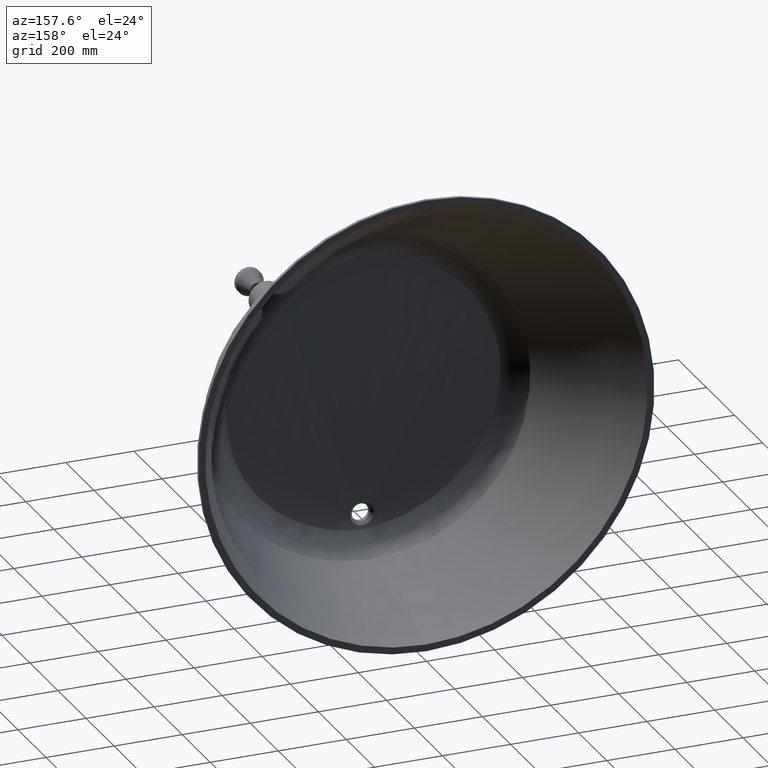
[diagram: clean part render]
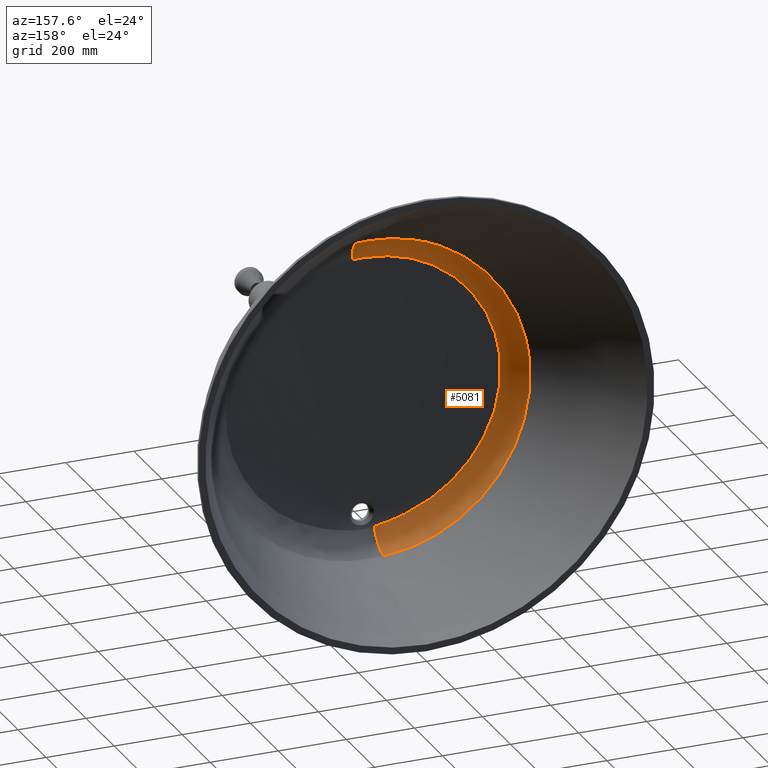
[diagram: same view with one face highlighted and labeled with its STEP entity id]
A machine part, auxiliary view. The second image highlights one B-rep face of the part: STEP entity #5081.
In plain terms, the highlighted face is a freeform B-spline surface patch.
Its self-contained STEP definition (entity closure, byte-faithful):
#11 = CARTESIAN_POINT ( 'NONE',  ( -380.6874927883818600, -411.2591823643048201, 186.1963731159006841 ) ) ;
#18 = CARTESIAN_POINT ( 'NONE',  ( -403.4991238725127118, -448.0094854409997538, 105.3720321697371389 ) ) ;
#32 = CARTESIAN_POINT ( 'NONE',  ( -107.5494659810897389, -448.6209203748109076, 301.0096475751493017 ) ) ;
#62 = CARTESIAN_POINT ( 'NONE',  ( -262.4161297211070973, -451.5447837134512952, -391.3700578226404900 ) ) ;
#92 = AXIS2_PLACEMENT_3D ( 'NONE', #11913, #17646, #4745 ) ;
#109 = CARTESIAN_POINT ( 'NONE',  ( -268.3076042350052717, -413.6612924292056732, 295.4820576891911514 ) ) ;
#116 = CARTESIAN_POINT ( 'NONE',  ( -376.0250175949232130, -411.3791172067551543, 192.7419233986458380 ) ) ;
#131 = CARTESIAN_POINT ( 'NONE',  ( -228.7600223083289279, -448.6866502234721565, 243.9691894665240568 ) ) ;
#160 = CARTESIAN_POINT ( 'NONE',  ( -339.2820930515302393, -448.4028529907404277, -391.1681600658000093 ) ) ;
#182 = ORIENTED_EDGE ( 'NONE', *, *, #15666, .T. ) ;
#202 = CARTESIAN_POINT ( 'NONE',  ( -107.9644687634926612, -415.8595086191751875, 366.2971697397609887 ) ) ;
#208 = CARTESIAN_POINT ( 'NONE',  ( -297.5167719271824467, -448.7593325076746282, 183.5308853611967947 ) ) ;
#222 = CARTESIAN_POINT ( 'NONE',  ( -342.7306229825160813, -448.8373833471220564, 124.0195318295624389 ) ) ;
#248 = CARTESIAN_POINT ( 'NONE',  ( -378.0419020465112681, -398.4220144337995748, -372.1737606910759268 ) ) ;
#301 = CARTESIAN_POINT ( 'NONE',  ( -276.0372796252733565, -448.0002677744503217, 260.9418603856609593 ) ) ;
#310 = DIRECTION ( 'NONE',  ( -0.07499568613314999688, 0.0000000000000000000, -0.9971838582033998311 ) ) ;
#314 = CARTESIAN_POINT ( 'NONE',  ( -395.2144450500330777, -449.0515956388112500, -6.153141008938428413 ) ) ;
#342 = CARTESIAN_POINT ( 'NONE',  ( -330.5413930751213911, -450.4964837677818537, -315.9584859615367805 ) ) ;
#394 = CARTESIAN_POINT ( 'NONE',  ( -243.4219422714536165, -414.0936557523519355, 311.2566570449512255 ) ) ;
#406 = CARTESIAN_POINT ( 'NONE',  ( -389.7708149806542792, -449.6256714223634390, -190.1161806364190454 ) ) ;
#436 = CARTESIAN_POINT ( 'NONE',  ( -394.7819957808741833, -448.2096629567387254, -311.9586312984436063 ) ) ;
#485 = CARTESIAN_POINT ( 'NONE',  ( -172.1295718933984915, -448.6486622933265380, 276.8823148813926309 ) ) ;
#496 = CARTESIAN_POINT ( 'NONE',  ( -324.1543925320705739, -450.5887268435364490, -324.7779672520163672 ) ) ;
#523 = CARTESIAN_POINT ( 'NONE',  ( -441.0164458112710690, -401.7973266216837374, -259.3653812936346981 ) ) ;
#525 = B_SPLINE_CURVE_WITH_KNOTS ( 'NONE', 3,
 ( #5583, #11337, #17071, #4167, #9923, #15657 ),
 .UNSPECIFIED., .F., .F.,
 ( 4, 2, 4 ),
 ( 1.251288116027606367, 1.267239969101889407, 1.283191822176172225 ),
 .UNSPECIFIED. ) ;
#574 = CARTESIAN_POINT ( 'NONE',  ( -108.4939889437370084, -447.9966955791643954, 342.2126304787619233 ) ) ;
#585 = CARTESIAN_POINT ( 'NONE',  ( -229.1116332666497897, -452.1350453589082576, -416.9764727845295056 ) ) ;
#613 = CARTESIAN_POINT ( 'NONE',  ( -391.7839762342823065, -449.5900176226123222, -182.4072791392573265 ) ) ;
#664 = CARTESIAN_POINT ( 'NONE',  ( -80.60876078230585051, -416.0733924889772766, 371.8702051402478332 ) ) ;
#675 = CARTESIAN_POINT ( 'NONE',  ( -103.8248743863099719, -454.9373980172167080, -476.8597864739141414 ) ) ;
#708 = CARTESIAN_POINT ( 'NONE',  ( -447.0151766188169518, -448.0624924279135826, -151.1508440355750054 ) ) ;
#767 = CARTESIAN_POINT ( 'NONE',  ( 5.415012349318431895, -448.6032973567780004, 316.0005358198349086 ) ) ;
#814 = CARTESIAN_POINT ( 'NONE',  ( -472.0186335447058354, -406.0550637268839864, -108.4683598344611966 ) ) ;
#840 = CARTESIAN_POINT ( 'NONE',  ( -42.15318012504820899, -399.0081758729725152, -557.2762125649240943 ) ) ;
#881 = VERTEX_POINT ( 'NONE', #2312 ) ;
#912 = CARTESIAN_POINT ( 'NONE',  ( -403.4167415621206487, -449.2218040724741854, -78.54511586904399678 ) ) ;
#935 = CARTESIAN_POINT ( 'NONE',  ( -68.46451978140514427, -455.8175015660055465, -486.0568824029771804 ) ) ;
#974 = CARTESIAN_POINT ( 'NONE',  ( -141.9155112335585613, -396.9153945865645596, -538.1199977231759703 ) ) ;
#982 = CARTESIAN_POINT ( 'NONE',  ( -468.5050871527460572, -407.7306478019426663, -31.02643829603768921 ) ) ;
#1004 = CARTESIAN_POINT ( 'NONE',  ( -448.7588880694672184, -448.0310393361625074, -55.54644109828566201 ) ) ;
#1028 = CARTESIAN_POINT ( 'NONE',  ( -109.9552686526032375, -449.6620979839611891, -531.2395399339565074 ) ) ;
#1069 = CARTESIAN_POINT ( 'NONE',  ( -281.7411767735476360, -396.3354335218986648, -467.2936917304684243 ) ) ;
#1077 = CARTESIAN_POINT ( 'NONE',  ( -396.0684455672120521, -449.0624978644531780, -11.31972735937935504 ) ) ;
#1120 = CARTESIAN_POINT ( 'NONE',  ( -127.1149870114975329, -397.1823261562618654, -542.2039109042417522 ) ) ;
#1155 = CARTESIAN_POINT ( 'NONE',  ( -2.066754476637886940E-15, -416.3584169623146636, 378.7792622009487786 ) ) ;
#1157 = CARTESIAN_POINT ( 'NONE',  ( -414.4548087427235146, -400.0449602098548780, -316.5834274410161129 ) ) ;
#1166 = CARTESIAN_POINT ( 'NONE',  ( -439.3541838429231348, -448.0200569330809799, 4.079810048620681862 ) ) ;
#1209 = CARTESIAN_POINT ( 'NONE',  ( -156.8434970879634704, -453.6347339255539737, -457.5669777360761827 ) ) ;
#1246 = CARTESIAN_POINT ( 'NONE',  ( -464.8061170584308570, -404.2728930741939166, -175.9857699770571173 ) ) ;
#1255 = CARTESIAN_POINT ( 'NONE',  ( -454.2616556250171698, -408.8089396564312779, 36.41960099575540255 ) ) ;
#1299 = CARTESIAN_POINT ( 'NONE',  ( -217.7495621091877638, -449.0578771205416047, -488.9436657849111043 ) ) ;
#1338 = CARTESIAN_POINT ( 'NONE',  ( -466.6007242117908049, -407.9319675166956927, -19.27812850414109747 ) ) ;
#1347 = CARTESIAN_POINT ( 'NONE',  ( -377.1106647317494094, -448.9426110668069327, 54.38042576264016503 ) ) ;
#1391 = CARTESIAN_POINT ( 'NONE',  ( -261.0716808604329913, -396.1938983566911929, -481.6261643899525779 ) ) ;
#1434 = CARTESIAN_POINT ( 'NONE',  ( -416.7219248936253848, -410.2656945177128591, 129.4176552270822071 ) ) ;
#1441 = CARTESIAN_POINT ( 'NONE',  ( -409.7741898426478429, -448.0105047742723627, 92.24387506273252768 ) ) ;
#1455 = CARTESIAN_POINT ( 'NONE',  ( -88.85863260072819969, -448.6154284073474514, 305.7403102947529305 ) ) ;
#1484 = CARTESIAN_POINT ( 'NONE',  ( -247.0945422058916279, -451.8098496664444497, -403.7409605337988978 ) ) ;
#1528 = CARTESIAN_POINT ( 'NONE',  ( -315.2407042387970932, -412.7501482119201341, 258.5239858810962801 ) ) ;
#1535 = CARTESIAN_POINT ( 'NONE',  ( -385.0707169464046729, -411.1505378667071682, 180.4545856817469485 ) ) ;
#1548 = CARTESIAN_POINT ( 'NONE',  ( -208.4027727699952663, -448.6715605126266837, 256.9903094329789042 ) ) ;
#1576 = CARTESIAN_POINT ( 'NONE',  ( -329.3103747042716236, -448.4441562040083227, -402.1886186204277465 ) ) ;
#1621 = CARTESIAN_POINT ( 'NONE',  ( -147.7258794453104542, -415.4627659838043314, 355.3448541060757861 ) ) ;
#1627 = CARTESIAN_POINT ( 'NONE',  ( -304.0489084896116765, -448.7686460513757538, 176.1292671648293151 ) ) ;
#1641 = CARTESIAN_POINT ( 'NONE',  ( -320.8101801133304889, -448.7950334624236461, 155.5732559596237934 ) ) ;
#1667 = CARTESIAN_POINT ( 'NONE',  ( -372.1130686052198371, -398.2071979246102842, -379.9466187722676409 ) ) ;
#1691 = VERTEX_POINT ( 'NONE', #8881 ) ;
#1716 = CARTESIAN_POINT ( 'NONE',  ( -2.066754476637886940E-15, -416.3584169623146636, 378.7792622009487786 ) ) ;
#1717 = ORIENTED_EDGE ( 'NONE', *, *, #18291, .T. ) ;
#1718 = CARTESIAN_POINT ( 'NONE',  ( -2.066754476637886940E-15, -416.3584169623146636, 378.7792622009487786 ) ) ;
#1721 = CARTESIAN_POINT ( 'NONE',  ( -298.2033383168395062, -448.0011509743401916, 242.5888916234130761 ) ) ;
#1734 = CARTESIAN_POINT ( 'NONE',  ( -380.1732315998293075, -448.9563275838956429, 46.14082443662633892 ) ) ;
#1760 = CARTESIAN_POINT ( 'NONE',  ( -328.6339895543111425, -450.5239270975030195, -318.6498833160355275 ) ) ;
#1809 = CARTESIAN_POINT ( 'NONE',  ( -253.2097510114347187, -413.9267282152429175, 305.2625794217933048 ) ) ;
#1821 = CARTESIAN_POINT ( 'NONE',  ( -400.9153230355495907, -449.3934060392431320, -133.7308192011309984 ) ) ;
#1849 = CARTESIAN_POINT ( 'NONE',  ( -391.1614164288993720, -448.2206275049651367, -318.4077615973935167 ) ) ;
#1900 = CARTESIAN_POINT ( 'NONE',  ( -183.8464243432606224, -448.6553461787598849, 271.0559768616944893 ) ) ;
#1912 = CARTESIAN_POINT ( 'NONE',  ( -340.7463322749759413, -450.3505894877418427, -301.0660960638785468 ) ) ;
#1943 = CARTESIAN_POINT ( 'NONE',  ( -438.1601378977295553, -401.5769338458832181, -266.5598580314179458 ) ) ;
#1991 = CARTESIAN_POINT ( 'NONE',  ( -122.4321443105378791, -447.9968390451100504, 338.5081933969663623 ) ) ;
#2002 = CARTESIAN_POINT ( 'NONE',  ( -256.0614120650952259, -451.6524314302384369, -396.7192298382599347 ) ) ;
#2029 = CARTESIAN_POINT ( 'NONE',  ( -388.3800159102770522, -449.6495277261262231, -195.1187267916961332 ) ) ;
#2080 = CARTESIAN_POINT ( 'NONE',  ( -84.37007741084867973, -416.0472132817646980, 371.2035202600385446 ) ) ;
#2091 = CARTESIAN_POINT ( 'NONE',  ( -134.3689830805806480, -454.1662836877040377, -466.8354951171896232 ) ) ;
#2121 = CARTESIAN_POINT ( 'NONE',  ( -444.9504718383649333, -448.0695317088590741, -165.6846731492834977 ) ) ;
#2175 = CARTESIAN_POINT ( 'NONE',  ( -20.72597264062187961, -448.6039183327881688, 315.4935888801707620 ) ) ;
#2186 = CARTESIAN_POINT ( 'NONE',  ( -37.87901828011925431, -456.3746310792212739, -492.1422672104303047 ) ) ;
#2220 = CARTESIAN_POINT ( 'NONE',  ( -471.2108569232946707, -405.6708107928905065, -123.8776399567619677 ) ) ;
#2247 = CARTESIAN_POINT ( 'NONE',  ( -38.22134936657973014, -399.0823476969094941, -557.5771498219405657 ) ) ;
#2312 = CARTESIAN_POINT ( 'NONE',  ( 31.64927243263235113, -448.6050476392409223, 314.5518307486622120 ) ) ;
#2320 = CARTESIAN_POINT ( 'NONE',  ( -403.4492054002553232, -449.2263680329363069, -80.19812529594321404 ) ) ;
#2345 = CARTESIAN_POINT ( 'NONE',  ( -61.86041175879318388, -455.9673231111287350, -487.5113267522497154 ) ) ;
#2386 = CARTESIAN_POINT ( 'NONE',  ( -112.7375508060342071, -397.4565598283850818, -545.9008353490447689 ) ) ;
#2394 = CARTESIAN_POINT ( 'NONE',  ( -470.7772043411409300, -407.2760686332666182, -54.12692373149862135 ) ) ;
#2415 = CARTESIAN_POINT ( 'NONE',  ( -449.3501900223160419, -448.0328103514823397, -62.90672537647152041 ) ) ;
#2438 = CARTESIAN_POINT ( 'NONE',  ( -108.1141336311484196, -449.6631098007713376, -531.6990924105997465 ) ) ;
#2477 = CARTESIAN_POINT ( 'NONE',  ( -266.3162317356393487, -396.2228655666398822, -478.1143730090394683 ) ) ;
#2485 = CARTESIAN_POINT ( 'NONE',  ( -396.1477222669025196, -449.0633110806405739, -11.72009522113977908 ) ) ;
#2532 = CARTESIAN_POINT ( 'NONE',  ( -123.3313551584378729, -397.2519346642093865, -543.2244231874946081 ) ) ;
#2537 = ORIENTED_EDGE ( 'NONE', *, *, #4514, .T. ) ;
#2570 = CARTESIAN_POINT ( 'NONE',  ( -379.7046190449219125, -398.4828387379257038, -369.9799838635931337 ) ) ;
#2579 = CARTESIAN_POINT ( 'NONE',  ( -439.7525117811641167, -448.0203097196593376, 2.305520384893457120 ) ) ;
#2622 = CARTESIAN_POINT ( 'NONE',  ( -144.7455788891263069, -453.9187222772868040, -462.6576138751509575 ) ) ;
#2659 = CARTESIAN_POINT ( 'NONE',  ( -454.3386685725220104, -402.9962964290469358, -219.7437149947606088 ) ) ;
#2669 = CARTESIAN_POINT ( 'NONE',  ( -456.3072099491588460, -408.6957690814191437, 29.04856457958923244 ) ) ;
#2710 = CARTESIAN_POINT ( 'NONE',  ( -204.5615753415599158, -449.1464071867987968, -495.9201338024017787 ) ) ;
#2747 = CARTESIAN_POINT ( 'NONE',  ( -471.8891035213062537, -406.8648962192585827, -73.47525888159034935 ) ) ;
#2756 = CARTESIAN_POINT ( 'NONE',  ( -378.8658723467046912, -448.9502900785870452, 49.73908639754494487 ) ) ;
#2799 = CARTESIAN_POINT ( 'NONE',  ( -251.2103769373908335, -396.1529587626993134, -487.9900620209423892 ) ) ;
#2843 = CARTESIAN_POINT ( 'NONE',  ( -435.9019259582339032, -409.6154266193718172, 88.69792876407095150 ) ) ;
#2846 = EDGE_LOOP ( 'NONE', ( #8836, #182, #1717, #11303, #14298, #2537 ) ) ;
#2853 = CARTESIAN_POINT ( 'NONE',  ( -416.1408136292665745, -448.0118582469931994, 77.06127354196308943 ) ) ;
#2867 = CARTESIAN_POINT ( 'NONE',  ( -63.53947433175931536, -448.6093987328575281, 310.8985115585098242 ) ) ;
#2897 = CARTESIAN_POINT ( 'NONE',  ( -241.8792551751029976, -451.9020841003930968, -407.7517499133375054 ) ) ;
#2941 = CARTESIAN_POINT ( 'NONE',  ( -358.3534256583785691, -411.8008198557944866, 214.1884816046933793 ) ) ;
#2948 = CARTESIAN_POINT ( 'NONE',  ( -401.9093258512142484, -410.6994246627736516, 155.1199372965278656 ) ) ;
#2961 = CARTESIAN_POINT ( 'NONE',  ( -202.8582568354855198, -448.6677253287404028, 260.3113114761919746 ) ) ;
#2991 = CARTESIAN_POINT ( 'NONE',  ( -324.1937133975046663, -448.4662013012849684, -407.5688183900022636 ) ) ;
#3036 = CARTESIAN_POINT ( 'NONE',  ( -203.1470403434363448, -414.7349004523809413, 333.1400446981325558 ) ) ;
#3043 = CARTESIAN_POINT ( 'NONE',  ( -306.2001209435530313, -448.7718068954850423, 173.6317517201939324 ) ) ;
#3056 = CARTESIAN_POINT ( 'NONE',  ( -308.6976422402014464, -448.7755607104092519, 170.6793311686360255 ) ) ;
#3082 = CARTESIAN_POINT ( 'NONE',  ( -367.2314116029081674, -398.0435068463393122, -386.0236874754845644 ) ) ;
#3132 = CARTESIAN_POINT ( 'NONE',  ( -59.76152357614204647, -416.2073493478290516, 375.2256300093565642 ) ) ;
#3139 = CARTESIAN_POINT ( 'NONE',  ( -308.8476591340940445, -448.0016522702109683, 232.8818157726745426 ) ) ;
#3152 = CARTESIAN_POINT ( 'NONE',  ( -376.7874173916630411, -448.9412276171150324, 55.22154865970167492 ) ) ;
#3179 = CARTESIAN_POINT ( 'NONE',  ( -325.7187966103861640, -450.5660576592809434, -322.6591896042239114 ) ) ;
#3231 = CARTESIAN_POINT ( 'NONE',  ( -259.6141188846394812, -413.8142133478816049, 301.1226542155712309 ) ) ;
#3243 = CARTESIAN_POINT ( 'NONE',  ( -403.5638136582634274, -449.2602177578293094, -92.24405613990248298 ) ) ;
#3270 = CARTESIAN_POINT ( 'NONE',  ( -383.5870599281539057, -448.2439701538631311, -331.1506843120311601 ) ) ;
#3321 = CARTESIAN_POINT ( 'NONE',  ( -198.1979485902013209, -448.6645980567772085, 263.0227316071077439 ) ) ;
#3333 = CARTESIAN_POINT ( 'NONE',  ( -370.7272346350945895, -449.9231941110278967, -244.7781119315591809 ) ) ;
#3360 = CARTESIAN_POINT ( 'NONE',  ( -429.0753625586285693, -400.9230007756822829, -287.8821392522535803 ) ) ;
#3408 = CARTESIAN_POINT ( 'NONE',  ( -149.8172121070881246, -447.9971960755556779, 329.8170920162222046 ) ) ;
#3420 = CARTESIAN_POINT ( 'NONE',  ( -293.3296467800751657, -451.0482666477882958, -361.8311472129005892 ) ) ;
#3449 = CARTESIAN_POINT ( 'NONE',  ( -386.5144136942395789, -449.6806366858835418, -201.4531473333963731 ) ) ;
#3500 = CARTESIAN_POINT ( 'NONE',  ( -91.88861908347409724, -415.9917674919125261, 369.7763063878782646 ) ) ;
#3511 = CARTESIAN_POINT ( 'NONE',  ( -192.3671944118326564, -452.8525439564726298, -440.1375737729244406 ) ) ;
#3539 = CARTESIAN_POINT ( 'NONE',  ( -443.7390073741085530, -448.0733698315497122, -172.9330526342535848 ) ) ;
#3593 = CARTESIAN_POINT ( 'NONE',  ( -33.76563429310370879, -448.6050082159429166, 314.5931950494847911 ) ) ;
#3604 = CARTESIAN_POINT ( 'NONE',  ( -50.57186479789684341, -456.1834240072701618, -489.8055000113884034 ) ) ;
#3609 = CARTESIAN_POINT ( 'NONE',  ( -38.22134936657834459, -399.0823476969094372, -557.5771498219405657 ) ) ;
#3635 = CARTESIAN_POINT ( 'NONE',  ( -470.6157630959974654, -405.4735186512224345, -131.5577007273986965 ) ) ;
#3686 = CARTESIAN_POINT ( 'NONE',  ( 34.81340931369227576, -447.9962450358207207, 353.8983222470026817 ) ) ;
#3734 = CARTESIAN_POINT ( 'NONE',  ( -403.5150665672345554, -449.2402019790657732, -85.15267903950677919 ) ) ;
#3761 = CARTESIAN_POINT ( 'NONE',  ( -51.80678097788652536, -456.1614839445241500, -489.5626830499952007 ) ) ;
#3802 = CARTESIAN_POINT ( 'NONE',  ( -90.59202995509831169, -397.9237679139634452, -550.7064075521126369 ) ) ;
#3831 = CARTESIAN_POINT ( 'NONE',  ( -449.8631204637944165, -448.0351642641775811, -72.15554403038777309 ) ) ;
#3855 = CARTESIAN_POINT ( 'NONE',  ( -98.90099600552453296, -449.6618353299785440, -533.9386089264947941 ) ) ;
#3892 = CARTESIAN_POINT ( 'NONE',  ( -256.8479804602944228, -396.1754313131205549, -484.3683350293651415 ) ) ;
#3901 = CARTESIAN_POINT ( 'NONE',  ( -396.3050573433621935, -449.0649414284058025, -12.52107944528529160 ) ) ;
#3945 = CARTESIAN_POINT ( 'NONE',  ( -117.6245426059839758, -397.3610698512020463, -544.6867665956181099 ) ) ;
#3983 = CARTESIAN_POINT ( 'NONE',  ( -370.4645342882528212, -398.1542608821834506, -381.9422603557033540 ) ) ;
#3992 = CARTESIAN_POINT ( 'NONE',  ( -440.3339087491315809, -448.0206940451997752, -0.3594797450661244564 ) ) ;
#4038 = CARTESIAN_POINT ( 'NONE',  ( -138.6305983774607853, -454.0657203880195425, -465.0695375577104755 ) ) ;
#4077 = CARTESIAN_POINT ( 'NONE',  ( -449.8764789619646649, -402.5620927522397778, -234.1947094931665845 ) ) ;
#4085 = CARTESIAN_POINT ( 'NONE',  ( -459.1030467684593646, -408.5239089676140907, 17.93051656247952153 ) ) ;
#4126 = CARTESIAN_POINT ( 'NONE',  ( -197.8872897244846740, -449.1921908265935031, -499.2409967696056583 ) ) ;
#4163 = CARTESIAN_POINT ( 'NONE',  ( -472.1274974318259865, -406.6971909014811217, -81.03132189528295726 ) ) ;
#4164 = VERTEX_POINT ( 'NONE', #1718 ) ;
#4167 = CARTESIAN_POINT ( 'NONE',  ( 10.67208039896678606, -448.6036519942027780, 315.7118380869967496 ) ) ;
#4172 = CARTESIAN_POINT ( 'NONE',  ( -379.9958715452178808, -448.9554906391393843, 46.63674905512046820 ) ) ;
#4216 = CARTESIAN_POINT ( 'NONE',  ( -244.5529404753413303, -396.1385129746275311, -492.0546137428308384 ) ) ;
#4257 = CARTESIAN_POINT ( 'NONE',  ( -444.1111489607899898, -409.2872720904032917, 67.56043354357123576 ) ) ;
#4265 = CARTESIAN_POINT ( 'NONE',  ( -416.8391751965238541, -448.0120120748778731, 75.36707226921043912 ) ) ;
#4280 = CARTESIAN_POINT ( 'NONE',  ( -12.59033578401135500, -448.6035081864423546, 315.8279195512379260 ) ) ;
#4309 = CARTESIAN_POINT ( 'NONE',  ( -233.8919959510939464, -452.0468973991381745, -413.5978546484198546 ) ) ;
#4353 = CARTESIAN_POINT ( 'NONE',  ( -363.2366730312775758, -411.6857497635180039, 208.4115573869714808 ) ) ;
#4361 = CARTESIAN_POINT ( 'NONE',  ( -409.7029141179655198, -410.4767764032827131, 142.0725162107521555 ) ) ;
#4376 = CARTESIAN_POINT ( 'NONE',  ( -173.2066471785466035, -448.6492609219735073, 276.3574538699826348 ) ) ;
#4406 = CARTESIAN_POINT ( 'NONE',  ( -308.4444182917272883, -448.5367682672823548, -423.3290875841229308 ) ) ;
#4450 = CARTESIAN_POINT ( 'NONE',  ( -239.5822581645828961, -414.1581102174384910, 313.5404330503095593 ) ) ;
#4456 = CARTESIAN_POINT ( 'NONE',  ( -310.4496730998277485, -448.7782465150745566, 168.5754455481943239 ) ) ;
#4471 = CARTESIAN_POINT ( 'NONE',  ( -287.2408213655901932, -448.7455719451299387, 194.6075190926101754 ) ) ;
#4499 = CARTESIAN_POINT ( 'NONE',  ( -357.2040846468170798, -397.7338649440041536, -397.8921321816351337 ) ) ;
#4514 = EDGE_CURVE ( 'NONE', #4164, #7649, #7752, .T. ) ;
#4543 = CARTESIAN_POINT ( 'NONE',  ( -93.20620485715269865, -415.9812324228811917, 369.5012286121649367 ) ) ;
#4549 = CARTESIAN_POINT ( 'NONE',  ( -324.1435184497950672, -448.0024254198268068, 217.5235501997210008 ) ) ;
#4562 = CARTESIAN_POINT ( 'NONE',  ( -372.0010237639132242, -448.9217841977174430, 67.20536045541741998 ) ) ;
#4587 = CARTESIAN_POINT ( 'NONE',  ( -324.7380493536833228, -450.5802621629094347, -323.9909926390998862 ) ) ;
#4641 = CARTESIAN_POINT ( 'NONE',  ( -278.4713674222174404, -413.4737919801746671, 288.2790101009613295 ) ) ;
#4654 = CARTESIAN_POINT ( 'NONE',  ( -403.2620604918510594, -449.2063654975657414, -72.87788850808824748 ) ) ;
#4682 = CARTESIAN_POINT ( 'NONE',  ( -379.6327491615084000, -448.2566664895062445, -337.4432975616860517 ) ) ;
#4732 = CARTESIAN_POINT ( 'NONE',  ( -201.0534876673716838, -448.6664936375371440, 261.3784652625041645 ) ) ;
#4744 = CARTESIAN_POINT ( 'NONE',  ( -382.1653253249823479, -449.7501505355990048, -214.7807444751580874 ) ) ;
#4745 = DIRECTION ( 'NONE',  ( 0.08015697918525110932, 0.0000000000000000000, 0.9967822523941201052 ) ) ;
#4771 = CARTESIAN_POINT ( 'NONE',  ( -422.3288656943156525, -400.4966710168623081, -301.7539014989326915 ) ) ;
#4819 = CARTESIAN_POINT ( 'NONE',  ( -163.2675653222917163, -447.9974030488904759, 324.8271196412663926 ) ) ;
#4830 = CARTESIAN_POINT ( 'NONE',  ( -316.2917522019440639, -450.7035246464566285, -335.0308227398943473 ) ) ;
#4858 = CARTESIAN_POINT ( 'NONE',  ( -382.4519250623010862, -449.7459183665655473, -214.0715326893472081 ) ) ;
#4908 = CARTESIAN_POINT ( 'NONE',  ( -95.64864465791571035, -415.9624757585961561, 369.0150555165859032 ) ) ;
#4919 = CARTESIAN_POINT ( 'NONE',  ( -219.7624142554721516, -452.3107581818672998, -423.3349308688475503 ) ) ;
#4952 = CARTESIAN_POINT ( 'NONE',  ( -440.9551304628887465, -448.0816961342989657, -187.3951044006375639 ) ) ;
#5005 = CARTESIAN_POINT ( 'NONE',  ( -53.27926677474423656, -448.6077669556603382, 312.2707386868149229 ) ) ;
#5016 = CARTESIAN_POINT ( 'NONE',  ( -78.91231360922026283, -455.5689023648889133, -483.6000083186446545 ) ) ;
#5049 = CARTESIAN_POINT ( 'NONE',  ( -469.0449584489473978, -405.0701600587113944, -146.8729877340821304 ) ) ;
#5081 = ADVANCED_FACE ( 'NONE', ( #16565 ), #13241, .F. ) ;
#5101 = CARTESIAN_POINT ( 'NONE',  ( 20.37069061042738838, -447.9962027028199714, 355.0189457628396212 ) ) ;
#5146 = CARTESIAN_POINT ( 'NONE',  ( -403.5169253642098397, -449.2496148387761536, -88.44973388008907023 ) ) ;
#5172 = CARTESIAN_POINT ( 'NONE',  ( -48.43030954951728972, -456.2209397845284684, -490.2246615540607309 ) ) ;
#5213 = CARTESIAN_POINT ( 'NONE',  ( -53.28688488266065093, -398.7741177822051668, -556.2473899340226353 ) ) ;
#5242 = CARTESIAN_POINT ( 'NONE',  ( -449.9544850728025267, -448.0356427304865292, -74.01030458354190955 ) ) ;
#5268 = CARTESIAN_POINT ( 'NONE',  ( -91.48518034851385039, -449.6412670777677931, -535.5495609207072221 ) ) ;
#5309 = CARTESIAN_POINT ( 'NONE',  ( -224.5416892813199468, -396.1350867599695675, -503.5907568394669624 ) ) ;
#5317 = CARTESIAN_POINT ( 'NONE',  ( -396.3831213346233540, -449.0657584285258963, -12.92169471079997578 ) ) ;
#5361 = CARTESIAN_POINT ( 'NONE',  ( -115.7161678753956551, -397.3982521060491990, -545.1630119958142586 ) ) ;
#5397 = CARTESIAN_POINT ( 'NONE',  ( -343.4950802129918088, -397.3521727737270908, -413.1681085625746732 ) ) ;
#5405 = CARTESIAN_POINT ( 'NONE',  ( -440.5250415264497406, -448.0208230208821760, -1.248486776143716614 ) ) ;
#5449 = CARTESIAN_POINT ( 'NONE',  ( -126.2633867471741951, -454.3693360755891035, -469.6317310841660628 ) ) ;
#5482 = CARTESIAN_POINT ( 'NONE',  ( 30.57441597406217326, -416.3168589706214107, 377.8296582089409981 ) ) ;
#5484 = CARTESIAN_POINT ( 'NONE',  ( -446.2837480695472436, -402.2373079554746482, -244.9224836401741925 ) ) ;
#5493 = CARTESIAN_POINT ( 'NONE',  ( -459.9895658692316260, -408.4662700551482999, 14.21423135738941745 ) ) ;
#5539 = CARTESIAN_POINT ( 'NONE',  ( -184.3815114531959978, -449.2849373145984941, -505.5469641479170946 ) ) ;
#5579 = CARTESIAN_POINT ( 'NONE',  ( -472.2074102044476831, -406.2181037133787527, -101.7309001924122498 ) ) ;
#5583 = CARTESIAN_POINT ( 'NONE',  ( 31.64927243263235113, -448.6050476392409223, 314.5518307486622120 ) ) ;
#5588 = CARTESIAN_POINT ( 'NONE',  ( -383.2665421238954764, -448.9713523698876543, 37.30557846504896702 ) ) ;
#5631 = CARTESIAN_POINT ( 'NONE',  ( -231.0842227683534418, -396.1358380227961788, -499.8284724507274177 ) ) ;
#5672 = CARTESIAN_POINT ( 'NONE',  ( -455.7272796369438197, -408.7395838588550987, 31.84722541987369837 ) ) ;
#5680 = CARTESIAN_POINT ( 'NONE',  ( -418.2166186285534195, -448.0123259690911937, 71.96673663121400466 ) ) ;
#5723 = CARTESIAN_POINT ( 'NONE',  ( -231.2021871599959013, -452.0962425680198180, -415.5182613781756231 ) ) ;
#5766 = CARTESIAN_POINT ( 'NONE',  ( -376.1902739743475195, -411.3719668346650451, 192.2129884634738062 ) ) ;
#5773 = CARTESIAN_POINT ( 'NONE',  ( -424.0376913616489674, -410.0341695943777722, 115.2066787133036740 ) ) ;
#5788 = CARTESIAN_POINT ( 'NONE',  ( -125.9425226237236330, -448.6272533337497634, 295.5224549674437071 ) ) ;
#5818 = CARTESIAN_POINT ( 'NONE',  ( -297.4420867130046418, -448.5892740821767006, -433.3004757842039112 ) ) ;
#5865 = CARTESIAN_POINT ( 'NONE',  ( -252.4823416189207421, -413.9385228280659703, 305.6679052492567052 ) ) ;
#5873 = CARTESIAN_POINT ( 'NONE',  ( -312.5489608569608322, -448.7815270974026589, 166.0152852664205341 ) ) ;
#5887 = CARTESIAN_POINT ( 'NONE',  ( -239.1596621245925860, -448.6953716787458575, 236.4961779957556871 ) ) ;
#5914 = CARTESIAN_POINT ( 'NONE',  ( -352.0580935188668263, -397.5878642202689548, -403.6844163361713527 ) ) ;
#5957 = CARTESIAN_POINT ( 'NONE',  ( -104.2923814651775700, -415.8913341564341977, 367.1436102100824996 ) ) ;
#5963 = CARTESIAN_POINT ( 'NONE',  ( -329.1333447562072365, -448.0027009790533157, 212.2670763894376762 ) ) ;
#5976 = CARTESIAN_POINT ( 'NONE',  ( -355.5303213026746789, -448.8687984647334019, 101.9287134643076627 ) ) ;
#6002 = CARTESIAN_POINT ( 'NONE',  ( -322.7584260637259490, -450.6090033830418520, -326.6452978303927921 ) ) ;
#6055 = CARTESIAN_POINT ( 'NONE',  ( -290.5690750276136214, -413.2433451073708284, 279.1524950934298204 ) ) ;
#6067 = CARTESIAN_POINT ( 'NONE',  ( -397.6698725130160597, -449.0768843643353421, -18.67637667300240167 ) ) ;
#6094 = CARTESIAN_POINT ( 'NONE',  ( -373.4525737454380305, -448.2772483426594476, -346.7549555022035861 ) ) ;
#6148 = CARTESIAN_POINT ( 'NONE',  ( -206.7347575675390488, -448.6703771114875394, 258.0139689615259613 ) ) ;
#6159 = CARTESIAN_POINT ( 'NONE',  ( 0.2058592431212609986, -448.6035163470490943, 315.8212447731140742 ) ) ;
#6161 = CARTESIAN_POINT ( 'NONE',  ( -388.0353133812997157, -449.6553051489602240, -196.3108745206526464 ) ) ;
#6190 = CARTESIAN_POINT ( 'NONE',  ( -411.1923185255608928, -399.8822411618481851, -322.0311793745729005 ) ) ;
#6238 = CARTESIAN_POINT ( 'NONE',  ( -189.6840235233754868, -447.9978920024710192, 313.5653895658807642 ) ) ;
#6249 = CARTESIAN_POINT ( 'NONE',  ( -322.2167780808365478, -450.6168839447490200, -327.3635380023816879 ) ) ;
#6277 = CARTESIAN_POINT ( 'NONE',  ( -380.2720836411534151, -449.7798195594396020, -220.3028979101558491 ) ) ;
#6326 = CARTESIAN_POINT ( 'NONE',  ( -114.3394445820454450, -415.8094445219932709, 364.9939722859935500 ) ) ;
#6337 = CARTESIAN_POINT ( 'NONE',  ( -227.7875877369109787, -452.1596444602292308, -417.8979988131104619 ) ) ;
#6365 = CARTESIAN_POINT ( 'NONE',  ( -439.3815738571615270, -448.0861951100114311, -194.6100986418842638 ) ) ;
#6418 = CARTESIAN_POINT ( 'NONE',  ( -59.77609507692680779, -448.6088748614069459, 311.3343707417793098 ) ) ;
#6430 = CARTESIAN_POINT ( 'NONE',  ( -97.62195009056647166, -455.0957972779021929, -478.6561782254825630 ) ) ;
#6465 = CARTESIAN_POINT ( 'NONE',  ( -468.0689056792436418, -404.8641133103468519, -154.5087593896134308 ) ) ;
#6517 = CARTESIAN_POINT ( 'NONE',  ( 5.955385626537695209, -447.9961930450327827, 355.4368984607880861 ) ) ;
#6561 = CARTESIAN_POINT ( 'NONE',  ( -403.3977841356093563, -449.2784617082854766, -98.32321419074260405 ) ) ;
#6589 = CARTESIAN_POINT ( 'NONE',  ( -41.61245824909389768, -456.3260075938943032, -491.4905674432296223 ) ) ;
#6661 = CARTESIAN_POINT ( 'NONE',  ( -450.1140600312785409, -448.0366100092048782, -77.71611782648029987 ) ) ;
#6685 = CARTESIAN_POINT ( 'NONE',  ( -76.54336064178751542, -449.5258477690655354, -538.4202533960575465 ) ) ;
#6725 = CARTESIAN_POINT ( 'NONE',  ( -156.1630695057906451, -396.7010736496415575, -533.4513605568934054 ) ) ;
#6733 = CARTESIAN_POINT ( 'NONE',  ( -398.9381323903489260, -449.0928076972275562, -26.14629511264908501 ) ) ;
#6779 = CARTESIAN_POINT ( 'NONE',  ( -111.8960967095515429, -397.4739925818169013, -546.0907963780163072 ) ) ;
#6815 = CARTESIAN_POINT ( 'NONE',  ( -299.6473489895693660, -396.5241215192386903, -453.6657928133043356 ) ) ;
#6823 = CARTESIAN_POINT ( 'NONE',  ( -440.8077170395022790, -448.0210176305676555, -2.582888252569069287 ) ) ;
#6866 = CARTESIAN_POINT ( 'NONE',  ( -120.0112832919604813, -454.5259920587884608, -471.7819967282986227 ) ) ;
#6900 = CARTESIAN_POINT ( 'NONE',  ( 6.106093185547721625, -416.3584168854220025, 378.7792622581422393 ) ) ;
#6902 = CARTESIAN_POINT ( 'NONE',  ( -421.4626982569578217, -400.4467301454031372, -303.4194507225574853 ) ) ;
#6911 = CARTESIAN_POINT ( 'NONE',  ( -461.2512615653697026, -408.3791315551077901, 8.624531111047735621 ) ) ;
#6953 = CARTESIAN_POINT ( 'NONE',  ( -177.5522515258945759, -449.3319299394691484, -508.5314876393048849 ) ) ;
#6989 = CARTESIAN_POINT ( 'NONE',  ( -469.2688635219374191, -405.0846343440387614, -146.4821505930294450 ) ) ;
#6999 = CARTESIAN_POINT ( 'NONE',  ( -385.2879656866802520, -448.9822740572556086, 31.05259230889900124 ) ) ;
#7045 = CARTESIAN_POINT ( 'NONE',  ( -224.2715509354302696, -396.1475381983260604, -503.5389110985849470 ) ) ;
#7088 = CARTESIAN_POINT ( 'NONE',  ( -465.3736497365912328, -408.0565975242786863, -11.90639851864692922 ) ) ;
#7089 = VERTEX_POINT ( 'NONE', #3609 ) ;
#7096 = CARTESIAN_POINT ( 'NONE',  ( -418.8960840017031160, -448.0124861978787294, 70.25960090439230044 ) ) ;
#7140 = CARTESIAN_POINT ( 'NONE',  ( -225.7670901774453398, -452.1972194919338222, -419.3017752519904207 ) ) ;
#7181 = CARTESIAN_POINT ( 'NONE',  ( -401.7909547324242112, -410.7027652492143375, 155.2946457616644693 ) ) ;
#7188 = CARTESIAN_POINT ( 'NONE',  ( -430.5781839468972976, -409.8141186212617413, 101.3887187993688883 ) ) ;
#7202 = CARTESIAN_POINT ( 'NONE',  ( -91.99526884575759311, -448.6162829536520462, 305.0064825490379690 ) ) ;
#7232 = CARTESIAN_POINT ( 'NONE',  ( -280.1533493426849759, -448.6799213258051395, -447.4706311024297065 ) ) ;
#7278 = CARTESIAN_POINT ( 'NONE',  ( -303.9652159631655195, -412.9797874841675025, 268.3022645973626936 ) ) ;
#7285 = CARTESIAN_POINT ( 'NONE',  ( -322.8571287225570359, -448.7981468093918807, 153.1292571333947592 ) ) ;
#7298 = CARTESIAN_POINT ( 'NONE',  ( -212.5301638599596288, -448.6744970887983186, 254.4506892450353917 ) ) ;
#7326 = CARTESIAN_POINT ( 'NONE',  ( -341.5026696728323259, -397.3145292902476626, -414.9927186725008710 ) ) ;
#7374 = CARTESIAN_POINT ( 'NONE',  ( -126.1784796905779871, -415.6891987220153624, 361.6844022303382076 ) ) ;
#7381 = CARTESIAN_POINT ( 'NONE',  ( -336.4473876699427137, -448.0031399666552829, 204.1785673046044849 ) ) ;
#7394 = CARTESIAN_POINT ( 'NONE',  ( -324.6594585033849398, -448.8017810988237102, 150.4282229086909410 ) ) ;
#7419 = CARTESIAN_POINT ( 'NONE',  ( -321.7588419847940600, -450.6235504463435291, -327.9687187778596922 ) ) ;
#7469 = CARTESIAN_POINT ( 'NONE',  ( -313.8327949901266152, -412.7794271129405956, 259.7873971795222019 ) ) ;
#7478 = CARTESIAN_POINT ( 'NONE',  ( -31.93824656540718365, -377.3330874799652292, -480.8471537369311477 ) ) ;
#7482 = CARTESIAN_POINT ( 'NONE',  ( -385.4826240323788511, -448.9822011947767351, 30.93901240668583341 ) ) ;
#7509 = CARTESIAN_POINT ( 'NONE',  ( -371.3495470171748138, -448.2843762950061546, -349.8397176696511792 ) ) ;
#7559 = CARTESIAN_POINT ( 'NONE',  ( -209.5624043208342755, -448.6723665259290783, 256.2924127650189234 ) ) ;
#7570 = CARTESIAN_POINT ( 'NONE',  ( -397.0548463191188944, -449.4887814322475492, -158.9455623551938572 ) ) ;
#7598 = CARTESIAN_POINT ( 'NONE',  ( -407.3101479129218205, -399.6815580103884145, -328.7028766835601346 ) ) ;
#7614 = EDGE_CURVE ( 'NONE', #7089, #4164, #18546, .T. ) ;
#7649 = VERTEX_POINT ( 'NONE', #11803 ) ;
#7651 = CARTESIAN_POINT ( 'NONE',  ( -202.6524828992830010, -447.9981646451817596, 307.2906848878077994 ) ) ;
#7663 = CARTESIAN_POINT ( 'NONE',  ( -333.6795792011370736, -450.4509082201436740, -311.7651227456174752 ) ) ;
#7691 = CARTESIAN_POINT ( 'NONE',  ( -375.6221945294498710, -449.8504245021284191, -232.6140867802046159 ) ) ;
#7740 = CARTESIAN_POINT ( 'NONE',  ( -129.0181159013344541, -415.6654095127940423, 361.0783625060476538 ) ) ;
#7751 = CARTESIAN_POINT ( 'NONE',  ( -240.8666353197016576, -451.9202673804715573, -408.5118866021828694 ) ) ;
#7752 = B_SPLINE_CURVE_WITH_KNOTS ( 'NONE', 3,
 ( #1155, #6900, #12646, #18382, #5482, #11236 ),
 .UNSPECIFIED., .F., .F.,
 ( 4, 2, 4 ),
 ( 1.490659800728648232, 1.509158752625246569, 1.527657704521844906 ),
 .UNSPECIFIED. ) ;
#7779 = CARTESIAN_POINT ( 'NONE',  ( -435.8673958906980488, -448.0957751633279713, -209.0012718416209907 ) ) ;
#7830 = CARTESIAN_POINT ( 'NONE',  ( -69.50982690027223043, -448.6108186654098517, 309.6836225233220148 ) ) ;
#7842 = CARTESIAN_POINT ( 'NONE',  ( -122.2913602418082775, -454.4672366519700404, -471.1456436147758495 ) ) ;
#7871 = CARTESIAN_POINT ( 'NONE',  ( -465.7367357699556578, -404.4447017633809196, -169.7282395351307684 ) ) ;
#7924 = CARTESIAN_POINT ( 'NONE',  ( -22.79894514880681555, -447.9962135166140911, 354.8989459494460448 ) ) ;
#7935 = CARTESIAN_POINT ( 'NONE',  ( -34.68940902972897078, -456.4089955019231866, -492.6552812598599189 ) ) ;
#7971 = CARTESIAN_POINT ( 'NONE',  ( -403.1520272721370475, -449.2985077601299508, -104.8819472483245079 ) ) ;
#7997 = CARTESIAN_POINT ( 'NONE',  ( -38.17098000386558709, -456.3714855208396557, -492.0953083467964007 ) ) ;
#8067 = CARTESIAN_POINT ( 'NONE',  ( -450.1823113026924830, -448.0370965761332513, -79.56771330927006147 ) ) ;
#8092 = CARTESIAN_POINT ( 'NONE',  ( -69.02451004736833795, -449.4297696640847448, -539.6805401079603826 ) ) ;
#8130 = CARTESIAN_POINT ( 'NONE',  ( -120.0831384980135823, -397.3132348925801125, -544.0721915567506812 ) ) ;
#8138 = CARTESIAN_POINT ( 'NONE',  ( -400.7697674045732015, -449.1215575948534706, -39.10175374498021483 ) ) ;
#8160 = CARTESIAN_POINT ( 'NONE',  ( -471.3444414914658296, -407.1160773103408701, -61.86815080540309708 ) ) ;
#8182 = CARTESIAN_POINT ( 'NONE',  ( -109.9837973277082455, -397.5125617977531078, -546.5425017771709690 ) ) ;
#8223 = CARTESIAN_POINT ( 'NONE',  ( -267.8782838327526861, -396.2323467665543149, -477.0531353501861531 ) ) ;
#8231 = CARTESIAN_POINT ( 'NONE',  ( -440.9012756809941607, -448.0210826942854965, -3.027857092101619685 ) ) ;
#8276 = CARTESIAN_POINT ( 'NONE',  ( -110.5236627487981593, -454.7665107473659418, -474.8206944945217174 ) ) ;
#8316 = CARTESIAN_POINT ( 'NONE',  ( -390.8800149437303730, -398.9105051096732950, -354.7652577659384292 ) ) ;
#8325 = CARTESIAN_POINT ( 'NONE',  ( -461.6604787427839938, -408.3499718147264730, 6.758752250446129040 ) ) ;
#8366 = CARTESIAN_POINT ( 'NONE',  ( -163.7328923241044834, -449.4237520717639995, -514.1667719151893152 ) ) ;
#8405 = CARTESIAN_POINT ( 'NONE',  ( -456.3561608127471914, -403.2120772518433682, -212.4866728356800252 ) ) ;
#8415 = CARTESIAN_POINT ( 'NONE',  ( -389.0167838540430694, -449.0048847295841483, 18.48283084418505950 ) ) ;
#8458 = CARTESIAN_POINT ( 'NONE',  ( -210.4869449664373917, -396.1972584370819845, -510.6128025562787229 ) ) ;
#8495 = CARTESIAN_POINT ( 'NONE',  ( -471.1445961532600109, -407.2348822133805584, -56.46850419107907726 ) ) ;
#8504 = CARTESIAN_POINT ( 'NONE',  ( -420.9029313902340164, -448.0129762023594253, 65.12634204785568670 ) ) ;
#8552 = CARTESIAN_POINT ( 'NONE',  ( -223.0181650246277627, -452.2489226432886653, -421.1672257776567676 ) ) ;
#8595 = CARTESIAN_POINT ( 'NONE',  ( -432.9375287571427862, -409.7240362452520799, 95.62205007535176549 ) ) ;
#8602 = CARTESIAN_POINT ( 'NONE',  ( -437.2069959307212343, -409.5641177078808255, 85.39943407553801080 ) ) ;
#8616 = CARTESIAN_POINT ( 'NONE',  ( -79.38676764337589020, -448.6130318301178477, 307.7951017158529794 ) ) ;
#8646 = CARTESIAN_POINT ( 'NONE',  ( -274.2581128999717635, -448.7120628163469291, -452.0623007047337296 ) ) ;
#8691 = CARTESIAN_POINT ( 'NONE',  ( -347.2322510383921781, -412.0597735681516838, 227.0295279891139444 ) ) ;
#8698 = CARTESIAN_POINT ( 'NONE',  ( -330.5470085964140594, -448.8121930114144789, 142.4965367479425709 ) ) ;
#8711 = CARTESIAN_POINT ( 'NONE',  ( -204.2478191360721382, -448.6686729292977134, 259.4902515955451463 ) ) ;
#8739 = CARTESIAN_POINT ( 'NONE',  ( -336.0923514578178697, -397.1871695159446745, -420.5095447890827813 ) ) ;
#8784 = CARTESIAN_POINT ( 'NONE',  ( -189.5453383020933984, -414.9304933343933612, 339.3505181813500258 ) ) ;
#8790 = CARTESIAN_POINT ( 'NONE',  ( -338.8577339601567928, -448.0032904082227105, 201.4474478572923317 ) ) ;
#8803 = CARTESIAN_POINT ( 'NONE',  ( -312.8125807711863899, -448.7819455420141708, 165.6899481733465507 ) ) ;
#8829 = CARTESIAN_POINT ( 'NONE',  ( -316.7255557045977525, -450.6969936860270991, -334.5491580409433823 ) ) ;
#8836 = ORIENTED_EDGE ( 'NONE', *, *, #13674, .F. ) ;
#8881 = CARTESIAN_POINT ( 'NONE',  ( -34.68940902972897078, -456.4089955019231866, -492.6552812598599189 ) ) ;
#8882 = CARTESIAN_POINT ( 'NONE',  ( -29.93011384021017207, -416.3264341825155839, 378.0688926100792742 ) ) ;
#8891 = CARTESIAN_POINT ( 'NONE',  ( -324.9988908416712547, -412.5461024228935685, 249.5489232045950132 ) ) ;
#8904 = CARTESIAN_POINT ( 'NONE',  ( -377.3661161683814953, -448.9437150978013733, 53.71095995497572773 ) ) ;
#8929 = CARTESIAN_POINT ( 'NONE',  ( -368.1317518567204274, -448.2954784096015715, -354.4352814527074429 ) ) ;
#8980 = CARTESIAN_POINT ( 'NONE',  ( -217.9544720148992099, -448.6784431609336252, 251.0417882279906792 ) ) ;
#8992 = CARTESIAN_POINT ( 'NONE',  ( -403.2760550926165593, -449.2892151985697069, -101.8636802707421509 ) ) ;
#9020 = CARTESIAN_POINT ( 'NONE',  ( -399.2012481558302284, -399.2901228882132045, -341.8734119682112578 ) ) ;
#9069 = CARTESIAN_POINT ( 'NONE',  ( -218.5471732746918860, -447.9985488484270491, 298.6282068347179575 ) ) ;
#9080 = CARTESIAN_POINT ( 'NONE',  ( -359.8081627860029812, -450.0804263515260004, -267.8532843391778329 ) ) ;
#9108 = CARTESIAN_POINT ( 'NONE',  ( -373.1522827983710613, -449.8871232869254300, -238.6939825514411950 ) ) ;
#9158 = CARTESIAN_POINT ( 'NONE',  ( -157.8538124506748943, -415.3437430849377847, 351.8905474314142339 ) ) ;
#9170 = CARTESIAN_POINT ( 'NONE',  ( -284.4169041508508826, -451.1870749794086350, -370.9810656479928639 ) ) ;
#9199 = CARTESIAN_POINT ( 'NONE',  ( -433.9258059187530421, -448.1009188272781216, -216.1792429457460116 ) ) ;
#9248 = CARTESIAN_POINT ( 'NONE',  ( -72.75247735241669034, -448.6115131118531281, 309.0923155952405637 ) ) ;
#9259 = CARTESIAN_POINT ( 'NONE',  ( -169.6499682407244904, -453.3412219040025661, -451.8548773012163906 ) ) ;
#9288 = CARTESIAN_POINT ( 'NONE',  ( -464.3806128019363086, -404.2313388410076982, -177.3133348580971642 ) ) ;
#9341 = CARTESIAN_POINT ( 'NONE',  ( -37.14440081021227513, -447.9962450716263902, 353.9426651141928915 ) ) ;
#9352 = CARTESIAN_POINT ( 'NONE',  ( -47.40553863930331602, -456.2376636150672198, -490.4195055498036027 ) ) ;
#9382 = CARTESIAN_POINT ( 'NONE',  ( -402.3345974399966849, -449.3403864209510061, -117.9535370892791093 ) ) ;
#9409 = CARTESIAN_POINT ( 'NONE',  ( -34.68940902972730811, -456.4089955019229592, -492.6552812598625337 ) ) ;
#9435 = CARTESIAN_POINT ( 'NONE',  ( 36.70259749389813919, -416.2966106060285938, 377.3523824728632121 ) ) ;
#9482 = CARTESIAN_POINT ( 'NONE',  ( -450.3526853308554223, -448.0385870823464529, -85.11963086718898808 ) ) ;
#9508 = CARTESIAN_POINT ( 'NONE',  ( -57.61005235006177827, -449.2037317858999472, -541.3150824562264916 ) ) ;
#9552 = CARTESIAN_POINT ( 'NONE',  ( -97.99559434036611094, -397.7607734033835527, -549.2404261451614502 ) ) ;
#9583 = CARTESIAN_POINT ( 'NONE',  ( -471.8109806102520452, -406.9059003036507534, -71.59733849581090226 ) ) ;
#9606 = CARTESIAN_POINT ( 'NONE',  ( -100.4107843354008054, -397.7087100502138242, -548.7402160055800096 ) ) ;
#9644 = CARTESIAN_POINT ( 'NONE',  ( -261.5975141505236934, -396.1973061312812092, -481.2652300978776339 ) ) ;
#9652 = CARTESIAN_POINT ( 'NONE',  ( -441.0870544858300377, -448.0212131808818867, -3.918104881834237663 ) ) ;
#9696 = CARTESIAN_POINT ( 'NONE',  ( -107.3428324700195446, -454.8475883900080703, -475.8025277834676672 ) ) ;
#9736 = CARTESIAN_POINT ( 'NONE',  ( -372.8059084359227882, -398.2344457073739363, -378.9859114126851978 ) ) ;
#9745 = CARTESIAN_POINT ( 'NONE',  ( -462.2572816889419300, -408.3060408527715595, 3.956281798997053123 ) ) ;
#9791 = CARTESIAN_POINT ( 'NONE',  ( -156.7448748430480521, -449.4686547911496746, -516.8169062106189813 ) ) ;
#9830 = CARTESIAN_POINT ( 'NONE',  ( -451.0221535405478335, -402.6706564591768256, -230.5920967385166591 ) ) ;
#9839 = CARTESIAN_POINT ( 'NONE',  ( -390.7240069273697713, -449.0165779236082813, 12.16616850659692162 ) ) ;
#9881 = CARTESIAN_POINT ( 'NONE',  ( -203.5132301089585951, -396.2352737657581656, -513.9769266596372290 ) ) ;
#9919 = CARTESIAN_POINT ( 'NONE',  ( -472.0794971072277235, -406.7394860947119355, -79.14415481789637852 ) ) ;
#9923 = CARTESIAN_POINT ( 'NONE',  ( 5.436498636892586944, -448.6035196828212861, 315.8185163560084447 ) ) ;
#9928 = CARTESIAN_POINT ( 'NONE',  ( -422.1965373305293951, -448.0133146338941970, 61.69416461531864826 ) ) ;
#9971 = CARTESIAN_POINT ( 'NONE',  ( -214.7265126447708212, -452.4069238005010902, -426.6510488670320456 ) ) ;
#10013 = CARTESIAN_POINT ( 'NONE',  ( -441.4760538258508973, -409.3966966059738297, 74.63782533583473366 ) ) ;
#10021 = CARTESIAN_POINT ( 'NONE',  ( -437.9333835825070764, -409.5363032317691818, 83.61665851115385806 ) ) ;
#10035 = CARTESIAN_POINT ( 'NONE',  ( -25.35700992636853357, -448.6042576032403986, 315.2136993480578440 ) ) ;
#10067 = CARTESIAN_POINT ( 'NONE',  ( -265.2197322368327264, -448.7630509575591304, -458.7454848328049479 ) ) ;
#10112 = CARTESIAN_POINT ( 'NONE',  ( -362.0233899642191204, -411.7145123576429455, 209.8644739027602384 ) ) ;
#10119 = CARTESIAN_POINT ( 'NONE',  ( -344.8448574492859393, -448.8421645457843852, 120.6006135035629399 ) ) ;
#10133 = CARTESIAN_POINT ( 'NONE',  ( -190.2631611406904142, -448.6594709968950951, 267.4746486395328589 ) ) ;
#10161 = CARTESIAN_POINT ( 'NONE',  ( -319.4689580193324332, -396.8351856110795097, -436.6457659739701853 ) ) ;
#10205 = CARTESIAN_POINT ( 'NONE',  ( -229.7700369458318903, -414.3201269958629496, 319.2099242863486097 ) ) ;
#10211 = CARTESIAN_POINT ( 'NONE',  ( -343.6212821288887085, -448.0035974814306314, 195.9159064177933658 ) ) ;
#10225 = CARTESIAN_POINT ( 'NONE',  ( -296.0745033609532584, -448.7570236230938008, 185.3260581122769395 ) ) ;
#10253 = CARTESIAN_POINT ( 'NONE',  ( -312.5873415250425751, -450.7579880049074745, -339.6947828453403417 ) ) ;
#10299 = CARTESIAN_POINT ( 'NONE',  ( -91.34941625609694427, -415.9954899041457566, 369.8709278287337838 ) ) ;
#10306 = CARTESIAN_POINT ( 'NONE',  ( -341.0416109000651659, -412.1956605114698959, 233.3458345901674420 ) ) ;
#10319 = CARTESIAN_POINT ( 'NONE',  ( -375.0187476254537842, -448.9338643021201847, 59.73073245531152509 ) ) ;
#10344 = CARTESIAN_POINT ( 'NONE',  ( -367.0482717769087913, -448.2992486763029660, -355.9623275028692433 ) ) ;
#10400 = CARTESIAN_POINT ( 'NONE',  ( -223.4427361971343657, -448.6826483853974423, 247.4184397297545672 ) ) ;
#10411 = CARTESIAN_POINT ( 'NONE',  ( -403.3661493384956884, -449.2151092976160953, -76.11553887088653880 ) ) ;
#10438 = CARTESIAN_POINT ( 'NONE',  ( -394.9742944919851197, -399.0994148255076652, -348.3720127716846378 ) ) ;
#10487 = CARTESIAN_POINT ( 'NONE',  ( -221.7128155256051514, -447.9986277554316985, 296.8531791840207461 ) ) ;
#10498 = CARTESIAN_POINT ( 'NONE',  ( -381.1083879217134722, -449.7666496049271245, -217.8258034023133121 ) ) ;
#10526 = CARTESIAN_POINT ( 'NONE',  ( -365.3162071112065519, -450.0017553813269728, -256.7119154573816786 ) ) ;
#10574 = CARTESIAN_POINT ( 'NONE',  ( -172.0114676216423391, -415.1659762545024250, 346.6176244002712679 ) ) ;
#10586 = CARTESIAN_POINT ( 'NONE',  ( -310.2284681575549143, -450.7930551177547045, -342.5506967858233338 ) ) ;
#10613 = CARTESIAN_POINT ( 'NONE',  ( -429.6676453273482252, -448.1123084748915630, -230.4934905481654823 ) ) ;
#10636 = CIRCLE ( 'NONE', #92, 79.99999999999997158 ) ;
#10664 = CARTESIAN_POINT ( 'NONE',  ( -79.23388277891557152, -448.6129946929323182, 307.8269018018336283 ) ) ;
#10676 = CARTESIAN_POINT ( 'NONE',  ( -217.0623403444576240, -452.3624930873097014, -425.1001207662536672 ) ) ;
#10706 = CARTESIAN_POINT ( 'NONE',  ( -461.2844756855012633, -403.7988596694173111, -192.4377400821239519 ) ) ;
#10757 = CARTESIAN_POINT ( 'NONE',  ( -58.61045253331898408, -447.9963336409866201, 351.4718900644913901 ) ) ;
#10768 = CARTESIAN_POINT ( 'NONE',  ( -66.35505959829094991, -455.8653899057096623, -486.5258915747656943 ) ) ;
#10799 = CARTESIAN_POINT ( 'NONE',  ( -401.7629629076627111, -449.3622176201556613, -124.4663991235928364 ) ) ;
#10851 = CARTESIAN_POINT ( 'NONE',  ( 21.47545294942653626, -416.3469232024382336, 378.5383046971342651 ) ) ;
#10896 = CARTESIAN_POINT ( 'NONE',  ( -450.4203228072294678, -448.0396309640858590, -88.81514413747405001 ) ) ;
#10921 = CARTESIAN_POINT ( 'NONE',  ( -53.78918486585519787, -449.1148778229407412, -541.8164596127180630 ) ) ;
#10964 = CARTESIAN_POINT ( 'NONE',  ( -68.26636592839199125, -398.4344938158774880, -554.3875001492087904 ) ) ;
#10995 = CARTESIAN_POINT ( 'NONE',  ( -471.8921931724495380, -406.8633268296483152, -73.54722143625117781 ) ) ;
#11018 = CARTESIAN_POINT ( 'NONE',  ( -92.71721406910241114, -397.8765110513041350, -550.3032215808760839 ) ) ;
#11057 = CARTESIAN_POINT ( 'NONE',  ( -237.6470696853562004, -396.1209305517983807, -496.3185844418640045 ) ) ;
#11065 = CARTESIAN_POINT ( 'NONE',  ( -441.1794042124235489, -448.0212819933364585, -4.364366791186087724 ) ) ;
#11110 = CARTESIAN_POINT ( 'NONE',  ( -102.5426970051407665, -454.9701310411438726, -477.2303026223634106 ) ) ;
#11147 = CARTESIAN_POINT ( 'NONE',  ( -358.4756694234064867, -397.7714671769422239, -396.4235053279868453 ) ) ;
#11157 = CARTESIAN_POINT ( 'NONE',  ( -462.4533788139619901, -408.2913652925808492, 3.021491287615139409 ) ) ;
#11201 = CARTESIAN_POINT ( 'NONE',  ( -142.6016925327932654, -449.5511989174043492, -521.7808078208669258 ) ) ;
#11236 = CARTESIAN_POINT ( 'NONE',  ( 36.70259749386149650, -416.2966106060288212, 377.3523824728662817 ) ) ;
#11238 = CARTESIAN_POINT ( 'NONE',  ( -447.5123924187799389, -402.3453716685864379, -241.3625331618826806 ) ) ;
#11247 = CARTESIAN_POINT ( 'NONE',  ( -393.0507312107166626, -449.0347981862449274, 2.643637365715814092 ) ) ;
#11293 = CARTESIAN_POINT ( 'NONE',  ( -189.4118499028598421, -396.3382941203362861, -520.3553801359746558 ) ) ;
#11303 = ORIENTED_EDGE ( 'NONE', *, *, #17625, .T. ) ;
#11333 = CARTESIAN_POINT ( 'NONE',  ( -472.2638094656534236, -406.4824482133641368, -90.45344273016934267 ) ) ;
#11337 = CARTESIAN_POINT ( 'NONE',  ( 26.39871659019616601, -448.6045414323941714, 314.9734498393331137 ) ) ;
#11342 = CARTESIAN_POINT ( 'NONE',  ( -425.9470295573796648, -448.0143605628244359, 51.36441345841969763 ) ) ;
#11385 = CARTESIAN_POINT ( 'NONE',  ( -209.1327284544252620, -452.5162327840395733, -430.1616060609727015 ) ) ;
#11426 = CARTESIAN_POINT ( 'NONE',  ( -451.5248210905782003, -408.9589804414781611, 46.22539915847765712 ) ) ;
#11434 = CARTESIAN_POINT ( 'NONE',  ( -439.3657456399525927, -409.4805807488652363, 80.03866481471439442 ) ) ;
#11477 = CARTESIAN_POINT ( 'NONE',  ( -262.1736001760281169, -448.7804707910816546, -460.9396495534841733 ) ) ;
#11519 = CARTESIAN_POINT ( 'NONE',  ( -369.2102099649866318, -411.5425891874995159, 201.0992184766398054 ) ) ;
#11526 = CARTESIAN_POINT ( 'NONE',  ( -351.4531818435184505, -448.8580514204066390, 109.3374642016476059 ) ) ;
#11541 = CARTESIAN_POINT ( 'NONE',  ( -137.9798423462267465, -448.6321170460937537, 291.2934091966388905 ) ) ;
#11574 = CARTESIAN_POINT ( 'NONE',  ( -307.8731097122384313, -396.6405615619887612, -446.8462979206701675 ) ) ;
#11619 = CARTESIAN_POINT ( 'NONE',  ( -249.2879028020644512, -413.9937077498231588, 307.6704939197743442 ) ) ;
#11625 = CARTESIAN_POINT ( 'NONE',  ( -345.9755356849109376, -448.0037542514232314, 193.1139329624088816 ) ) ;
#11641 = CARTESIAN_POINT ( 'NONE',  ( -259.1753434661504230, -448.7141006856892318, 220.6452149099461053 ) ) ;
#11669 = CARTESIAN_POINT ( 'NONE',  ( -304.0923765956789566, -450.8849291829718027, -349.7539894811580439 ) ) ;
#11711 = CARTESIAN_POINT ( 'NONE',  ( -98.75959235210856946, -415.9371114376018568, 368.3491860151829655 ) ) ;
#11718 = CARTESIAN_POINT ( 'NONE',  ( -346.2711989990540928, -412.0788054493712593, 227.8037139270159628 ) ) ;
#11731 = CARTESIAN_POINT ( 'NONE',  ( -361.4143018062711690, -448.8855099035050102, 90.58326940081164480 ) ) ;
#11757 = CARTESIAN_POINT ( 'NONE',  ( -364.8598346408629709, -448.3069293532859660, -359.0061612511773319 ) ) ;
#11803 = CARTESIAN_POINT ( 'NONE',  ( 36.70259749386149650, -416.2966106060288212, 377.3523824728662817 ) ) ;
#11808 = CARTESIAN_POINT ( 'NONE',  ( -239.5947193101142716, -448.6957425188811044, 236.1870098448644342 ) ) ;
#11819 = CARTESIAN_POINT ( 'NONE',  ( -401.3311127821075956, -449.1330012360066348, -43.97511506755137134 ) ) ;
#11846 = CARTESIAN_POINT ( 'NONE',  ( -388.3759041975359310, -398.8223065650643093, -357.9824546941465542 ) ) ;
#11900 = CARTESIAN_POINT ( 'NONE',  ( -228.0130320769113155, -447.9987895454537465, 293.2194555967836322 ) ) ;
#11912 = CARTESIAN_POINT ( 'NONE',  ( -385.1958942236552161, -449.7018710559755164, -205.5695017421903117 ) ) ;
#11913 = CARTESIAN_POINT ( 'NONE',  ( 31.55818683237399114, -368.6145611645971485, 313.3214743111757343 ) ) ;
#11939 = CARTESIAN_POINT ( 'NONE',  ( -359.5232926473989323, -450.0842647337692028, -268.4270299741446024 ) ) ;
#11987 = CARTESIAN_POINT ( 'NONE',  ( -199.8092766847662745, -414.7843923191419435, 334.7169087740565487 ) ) ;
#11998 = CARTESIAN_POINT ( 'NONE',  ( -321.2388651745685024, -450.6311284151000791, -328.6524939078139482 ) ) ;
#12025 = CARTESIAN_POINT ( 'NONE',  ( -427.3678830282387935, -448.1184714963872580, -237.5707620877572879 ) ) ;
#12072 = CARTESIAN_POINT ( 'NONE',  ( -82.47499812478480408, -448.6137825383705149, 307.1521658342105638 ) ) ;
#12083 = CARTESIAN_POINT ( 'NONE',  ( -225.1264666168619044, -452.2093926364869390, -419.7272581218799132 ) ) ;
#12113 = CARTESIAN_POINT ( 'NONE',  ( -459.5439284093893093, -403.5797519037980692, -199.9784630672228900 ) ) ;
#12165 = CARTESIAN_POINT ( 'NONE',  ( -65.75971152049559976, -447.9963730893250045, 350.4748828399582408 ) ) ;
#12177 = CARTESIAN_POINT ( 'NONE',  ( -94.51353837496806420, -455.1751469034535376, -479.5236620569339721 ) ) ;
#12210 = CARTESIAN_POINT ( 'NONE',  ( -400.2973125273397272, -449.4078234561196723, -137.4471405011658760 ) ) ;
#12263 = CARTESIAN_POINT ( 'NONE',  ( 6.279413736462521989, -416.3673607822873919, 378.9805789722001919 ) ) ;
#12310 = CARTESIAN_POINT ( 'NONE',  ( -450.4868395325753454, -448.0429253950983934, -99.89118667448522615 ) ) ;
#12337 = CARTESIAN_POINT ( 'NONE',  ( -46.09940311009975744, -448.9151738467557493, -542.7298972570998785 ) ) ;
#12379 = CARTESIAN_POINT ( 'NONE',  ( -38.22134936657834459, -399.0823476969094372, -557.5771498219405657 ) ) ;
#12403 = VERTEX_POINT ( 'NONE', #6159 ) ;
#12408 = CARTESIAN_POINT ( 'NONE',  ( -472.0298734056654553, -406.7773938656313817, -77.44271902080879499 ) ) ;
#12431 = CARTESIAN_POINT ( 'NONE',  ( -77.26629267963255643, -398.2249396113605826, -553.0413192973691139 ) ) ;
#12471 = CARTESIAN_POINT ( 'NONE',  ( -184.0857572882032969, -396.3744370859221817, -522.8092332094101948 ) ) ;
#12480 = CARTESIAN_POINT ( 'NONE',  ( -444.2107314005854732, -448.0236607055883269, -19.13664867337418940 ) ) ;
#12524 = CARTESIAN_POINT ( 'NONE',  ( -100.9370939325194598, -455.0111483652786433, -477.6989579175185554 ) ) ;
#12561 = CARTESIAN_POINT ( 'NONE',  ( -311.0930725056776396, -396.6928923351950402, -444.0567651495898644 ) ) ;
#12569 = CARTESIAN_POINT ( 'NONE',  ( -462.7432681500187641, -408.2693013397492336, 1.618356951189783954 ) ) ;
#12612 = CARTESIAN_POINT ( 'NONE',  ( -135.4528526935119146, -449.5888034313530284, -524.0927467007809355 ) ) ;
#12646 = CARTESIAN_POINT ( 'NONE',  ( 12.21765804812583944, -416.3530674173460397, 378.6610458187288373 ) ) ;
#12648 = CARTESIAN_POINT ( 'NONE',  ( -434.2024673543518816, -401.2737232725042418, -276.4358579878143019 ) ) ;
#12657 = CARTESIAN_POINT ( 'NONE',  ( -393.7872727385773146, -449.0409847878940468, -0.5384658168142504309 ) ) ;
#12701 = CARTESIAN_POINT ( 'NONE',  ( -182.2845706022754939, -396.4032643778360239, -523.3699107763974325 ) ) ;
#12738 = CARTESIAN_POINT ( 'NONE',  ( -470.7869517299477593, -405.4768244062292979, -131.6362323425163083 ) ) ;
#12747 = CARTESIAN_POINT ( 'NONE',  ( -428.2717592253998760, -448.0150950758358022, 44.43815906596770304 ) ) ;
#12793 = CARTESIAN_POINT ( 'NONE',  ( -197.8152118115565941, -452.7434671841669456, -436.8999540704468245 ) ) ;
#12833 = CARTESIAN_POINT ( 'NONE',  ( -462.5678475771393892, -408.2885621479124438, 2.763780666171563372 ) ) ;
#12841 = CARTESIAN_POINT ( 'NONE',  ( -440.0721289704907235, -409.4526594999152280, 78.24238269118427525 ) ) ;
#12885 = CARTESIAN_POINT ( 'NONE',  ( -256.0143850252113680, -448.8163846262744983, -465.2597359777228689 ) ) ;
#12929 = CARTESIAN_POINT ( 'NONE',  ( -393.7178978684722779, -410.9232677828420606, 167.8734232140801907 ) ) ;
#12936 = CARTESIAN_POINT ( 'NONE',  ( -363.5861036405106574, -448.8921639145119684, 86.17900483716941551 ) ) ;
#12951 = CARTESIAN_POINT ( 'NONE',  ( -101.3621773765429879, -448.6189683490002835, 302.6957532375002984 ) ) ;
#12981 = CARTESIAN_POINT ( 'NONE',  ( -289.6818384416524736, -396.4152996216500924, -461.3224618559054306 ) ) ;
#13025 = CARTESIAN_POINT ( 'NONE',  ( -280.4986650788162592, -413.4352601261288100, 286.7813018034424886 ) ) ;
#13032 = CARTESIAN_POINT ( 'NONE',  ( -357.5490938988384073, -448.0045439646819432, 178.9949849811474678 ) ) ;
#13045 = CARTESIAN_POINT ( 'NONE',  ( -215.2561953572055415, -448.6764915476765623, 252.7280881337933351 ) ) ;
#13076 = CARTESIAN_POINT ( 'NONE',  ( -299.7356914927166258, -450.9508800825632875, -354.6675435269849572 ) ) ;
#13119 = CARTESIAN_POINT ( 'NONE',  ( -118.9319125273850375, -415.7603159312206458, 363.6309679085219386 ) ) ;
#13125 = CARTESIAN_POINT ( 'NONE',  ( -353.9360248535474511, -411.9035348238109577, 219.2746505800614898 ) ) ;
#13138 = CARTESIAN_POINT ( 'NONE',  ( -335.8151770008939820, -448.8226464928540054, 134.7650641864589716 ) ) ;
#13164 = CARTESIAN_POINT ( 'NONE',  ( -363.7540921931756657, -448.3108426074567774, -360.5239884200350957 ) ) ;
#13216 = CARTESIAN_POINT ( 'NONE',  ( -249.9465123113156722, -448.7051087730200152, 228.2185336335232932 ) ) ;
#13225 = DIRECTION ( 'NONE',  ( 0.9969087514203545108, -0.02348810996155537012, -0.07497499604497348535 ) ) ;
#13229 = CARTESIAN_POINT ( 'NONE',  ( -389.1236736833833447, -449.0041974280223940, 18.65512936561900048 ) ) ;
#13241 =( BOUNDED_SURFACE ( )  B_SPLINE_SURFACE ( 3, 2, ( 
 ( #9409, #15144, #2247 ),
 ( #7997, #13743, #840 ),
 ( #6589, #12337, #18073 ),
 ( #5172, #10921, #16664 ),
 ( #3761, #9508, #15244 ),
 ( #2345, #8092, #13837 ),
 ( #935, #6685, #12431 ),
 ( #18166, #5268, #11018 ),
 ( #16760, #3855, #9606 ),
 ( #15337, #2438, #8182 ),
 ( #13929, #1028, #6779 ),
 ( #12524, #18261, #5361 ),
 ( #11110, #16850, #3945 ),
 ( #9696, #15430, #2532 ),
 ( #8276, #14020, #1120 ),
 ( #6866, #12612, #18350 ),
 ( #5449, #11201, #16941 ),
 ( #4038, #9791, #15523 ),
 ( #2622, #8366, #14109 ),
 ( #1209, #6953, #12701 ),
 ( #18436, #5539, #11293 ),
 ( #17030, #4126, #9881 ),
 ( #15615, #2710, #8458 ),
 ( #14198, #1299, #7045 ),
 ( #12793, #18528, #5631 ),
 ( #11385, #17119, #4216 ),
 ( #9971, #15706, #2799 ),
 ( #8552, #14293, #1391 ),
 ( #7140, #12885, #18621 ),
 ( #5723, #11477, #17211 ),
 ( #4309, #10067, #15803 ),
 ( #2897, #8646, #14385 ),
 ( #1484, #7232, #12981 ),
 ( #62, #5818, #11574 ),
 ( #17308, #4406, #10161 ),
 ( #15896, #2991, #8739 ),
 ( #14476, #1576, #7326 ),
 ( #13076, #160, #5914 ),
 ( #11669, #17401, #4499 ),
 ( #10253, #15986, #3082 ),
 ( #8829, #14569, #1667 ),
 ( #7419, #13164, #248 ),
 ( #6002, #11757, #17489 ),
 ( #4587, #10344, #16080 ),
 ( #3179, #8929, #14664 ),
 ( #1760, #7509, #13257 ),
 ( #342, #6094, #11846 ),
 ( #17582, #4682, #10438 ),
 ( #16171, #3270, #9020 ),
 ( #14754, #1849, #7598 ),
 ( #13345, #436, #6190 ),
 ( #11939, #17672, #4771 ),
 ( #10526, #16263, #3360 ),
 ( #9108, #14842, #1943 ),
 ( #7691, #13434, #523 ),
 ( #6277, #12025, #17760 ),
 ( #4858, #10613, #16351 ),
 ( #3449, #9199, #14931 ),
 ( #2029, #7779, #13522 ),
 ( #613, #6365, #12113 ),
 ( #17851, #4952, #10706 ),
 ( #16445, #3539, #9288 ),
 ( #15021, #2121, #7871 ),
 ( #13614, #708, #6465 ),
 ( #12210, #17947, #5049 ),
 ( #10799, #16540, #3635 ),
 ( #9382, #15116, #2220 ),
 ( #7971, #13717, #814 ),
 ( #6561, #12310, #18044 ),
 ( #5146, #10896, #16637 ),
 ( #3734, #9482, #15219 ),
 ( #2320, #8067, #13813 ),
 ( #912, #6661, #12408 ),
 ( #18141, #5242, #10995 ),
 ( #16736, #3831, #9583 ),
 ( #15315, #2415, #8160 ),
 ( #13906, #1004, #2394 ),
 ( #8138, #13884, #982 ),
 ( #6733, #12480, #18217 ),
 ( #5317, #11065, #16806 ),
 ( #3901, #9652, #15385 ),
 ( #2485, #8231, #13977 ),
 ( #1077, #6823, #12569 ),
 ( #18306, #5405, #11157 ),
 ( #16896, #3992, #9745 ),
 ( #15479, #2579, #8325 ),
 ( #14066, #1166, #6911 ),
 ( #12657, #18394, #5493 ),
 ( #11247, #16987, #4085 ),
 ( #9839, #15572, #2669 ),
 ( #8415, #14156, #1255 ),
 ( #6999, #12747, #18484 ),
 ( #5588, #11342, #17076 ),
 ( #4172, #9928, #15662 ),
 ( #2756, #8504, #14246 ),
 ( #1347, #7096, #12841 ),
 ( #18577, #5680, #11434 ),
 ( #17168, #4265, #10021 ),
 ( #15756, #2853, #8602 ),
 ( #14341, #1441, #7188 ),
 ( #12936, #18, #5773 ),
 ( #11526, #17261, #4361 ),
 ( #10119, #15853, #2948 ),
 ( #8698, #14435, #1535 ),
 ( #7285, #13032, #116 ),
 ( #5873, #11625, #17358 ),
 ( #4456, #10211, #15946 ),
 ( #3043, #8790, #14528 ),
 ( #1627, #7381, #13125 ),
 ( #208, #5963, #11718 ),
 ( #17450, #4549, #10306 ),
 ( #16039, #3139, #8891 ),
 ( #14625, #1721, #7469 ),
 ( #13216, #301, #6055 ),
 ( #11808, #17541, #4641 ),
 ( #10400, #16133, #3231 ),
 ( #8980, #14715, #1809 ),
 ( #7559, #13306, #394 ),
 ( #6148, #11900, #17633 ),
 ( #4732, #10487, #16223 ),
 ( #3321, #9069, #14803 ),
 ( #1900, #7651, #13397 ),
 ( #485, #6238, #11987 ),
 ( #17722, #4819, #10574 ),
 ( #16311, #3408, #9158 ),
 ( #14893, #1991, #7740 ),
 ( #13482, #574, #6326 ),
 ( #12072, #17808, #4908 ),
 ( #10664, #16405, #3500 ),
 ( #9248, #14981, #2080 ),
 ( #7830, #13573, #664 ),
 ( #6418, #12165, #17906 ),
 ( #5005, #10757, #16497 ),
 ( #3593, #9341, #15073 ),
 ( #2175, #7924, #13669 ),
 ( #767, #6517, #12263 ),
 ( #17999, #5101, #10851 ),
 ( #16591, #3686, #9435 ) ),
 .UNSPECIFIED., .F., .F., .T. ) 
 B_SPLINE_SURFACE_WITH_KNOTS ( ( 4, 2, 2, 2, 2, 2, 2, 2, 2, 2, 2, 2, 2, 2, 2, 2, 2, 2, 2, 2, 2, 2, 2, 2, 2, 2, 2, 2, 2, 2, 2, 2, 2, 2, 2, 2, 2, 2, 2, 2, 2, 2, 2, 2, 2, 2, 2, 2, 2, 2, 2, 2, 2, 2, 2, 2, 2, 2, 2, 2, 2, 2, 2, 2, 2, 2, 2, 2, 4 ),
 ( 3, 3 ),
 ( 0.0000000000000000000, 0.009860506863790960419, 0.01972101372758192084, 0.03944202745516384168, 0.05916304118274576251, 0.06409329461464124966, 0.06902354804653672293, 0.07888405491032768335, 0.09860506863790960419, 0.1183260823654915250, 0.1380470960930734459, 0.1577681098206553667, 0.1774891235482372875, 0.1972101372758192084, 0.2070706441396101827, 0.2169311510034011292, 0.2366521647309830501, 0.2760941921861468917, 0.2958152059137287848, 0.3155362196413107334, 0.3352572333688926820, 0.3401874868007881414, 0.3451177402326836008, 0.3549782470964745751, 0.3746992608240564682, 0.3944202745516384168, 0.4338623020068022584, 0.4535833157343841515, 0.4733043294619661001, 0.4930253431895480487, 0.5127463569171299973, 0.5324673706447118349, 0.5521883843722937835, 0.5719093980998757321, 0.5916304118274575696, 0.6014909186912484884, 0.6064211721231440588, 0.6113514255550395182, 0.6310724392826214668, 0.6705144667377853640, 0.6717470300957592011, 0.6729795934537330382, 0.6754447201696808234, 0.6803749736015762828, 0.6902354804653672016, 0.7099564941929491502, 0.7296775079205310988, 0.7395380147843220175, 0.7444682682162174769, 0.7493985216481129363, 0.7888405491032768335, 0.8282825765584407307, 0.8677246040136045169, 0.8775851108773955467, 0.8874456177411864655, 0.9071666314687683030, 0.9466086589239322002, 0.9860506863790960974, 1.005771700106678157, 1.015632206970469076, 1.025492713834259995, 1.064934741289423670, 1.104376768744587567, 1.143818796199751464, 1.153679303063542383, 1.163539809927333302, 1.183260823654915139, 1.222702851110079036, 1.262144878565242934 ),
 ( 0.0000000000000000000, 1.000000000000000000 ),
 .UNSPECIFIED. ) 
 GEOMETRIC_REPRESENTATION_ITEM ( )  RATIONAL_B_SPLINE_SURFACE ( (
 ( 1.000000000000000000, 0.8405339595521152951, 1.000000000000000000),
 ( 1.000000000000000000, 0.8395784935593139098, 1.000000000000000000),
 ( 1.000000000000000000, 0.8386128264729942883, 1.000000000000000000),
 ( 1.000000000000000000, 0.8367576132662876143, 1.000000000000000000),
 ( 1.000000000000000000, 0.8358677312715329100, 1.000000000000000000),
 ( 1.000000000000000000, 0.8333854689895529022, 1.000000000000000000),
 ( 1.000000000000000000, 0.8319820113244805748, 1.000000000000000000),
 ( 1.000000000000000000, 0.8296207154464615430, 1.000000000000000000),
 ( 1.000000000000000000, 0.8286536630455931807, 1.000000000000000000),
 ( 1.000000000000000000, 0.8276282268007553178, 1.000000000000000000),
 ( 1.000000000000000000, 0.8274324124250774792, 1.000000000000000000),
 ( 1.000000000000000000, 0.8270577321715396613, 1.000000000000000000),
 ( 1.000000000000000000, 0.8268788196792232759, 1.000000000000000000),
 ( 1.000000000000000000, 0.8263664061850378717, 1.000000000000000000),
 ( 1.000000000000000000, 0.8260565613541109853, 1.000000000000000000),
 ( 1.000000000000000000, 0.8252077467755438711, 1.000000000000000000),
 ( 1.000000000000000000, 0.8247484727025381490, 1.000000000000000000),
 ( 1.000000000000000000, 0.8239888032964194364, 1.000000000000000000),
 ( 1.000000000000000000, 0.8236879602826229219, 1.000000000000000000),
 ( 1.000000000000000000, 0.8232157958891984650, 1.000000000000000000),
 ( 1.000000000000000000, 0.8230449115878524236, 1.000000000000000000),
 ( 1.000000000000000000, 0.8228143912312069208, 1.000000000000000000),
 ( 1.000000000000000000, 0.8227551158611232651, 1.000000000000000000),
 ( 1.000000000000000000, 0.8227348960350071572, 1.000000000000000000),
 ( 1.000000000000000000, 0.8227761031546461101, 1.000000000000000000),
 ( 1.000000000000000000, 0.8229533157242796548, 1.000000000000000000),
 ( 1.000000000000000000, 0.8230896969095952143, 1.000000000000000000),
 ( 1.000000000000000000, 0.8233611883312772495, 1.000000000000000000),
 ( 1.000000000000000000, 0.8234629604002478009, 1.000000000000000000),
 ( 1.000000000000000000, 0.8236871402379760676, 1.000000000000000000),
 ( 1.000000000000000000, 0.8238096366180154284, 1.000000000000000000),
 ( 1.000000000000000000, 0.8242087701258989929, 1.000000000000000000),
 ( 1.000000000000000000, 0.8245162872405354948, 1.000000000000000000),
 ( 1.000000000000000000, 0.8255520187907516849, 1.000000000000000000),
 ( 1.000000000000000000, 0.8263895579726916463, 1.000000000000000000),
 ( 1.000000000000000000, 0.8278508575674197179, 1.000000000000000000),
 ( 1.000000000000000000, 0.8283717972351849479, 1.000000000000000000),
 ( 1.000000000000000000, 0.8294751438284968525, 1.000000000000000000),
 ( 1.000000000000000000, 0.8300577127768521413, 1.000000000000000000),
 ( 1.000000000000000000, 0.8312806448495156930, 1.000000000000000000),
 ( 1.000000000000000000, 0.8319217965970031603, 1.000000000000000000),
 ( 1.000000000000000000, 0.8327576565275791598, 1.000000000000000000),
 ( 1.000000000000000000, 0.8329265249864817866, 1.000000000000000000),
 ( 1.000000000000000000, 0.8332666346828959680, 1.000000000000000000),
 ( 1.000000000000000000, 0.8334379923221283404, 1.000000000000000000),
 ( 1.000000000000000000, 0.8339558132144950786, 1.000000000000000000),
 ( 1.000000000000000000, 0.8343060220854325859, 1.000000000000000000),
 ( 1.000000000000000000, 0.8353704416021259238, 1.000000000000000000),
 ( 1.000000000000000000, 0.8360987858528583505, 1.000000000000000000),
 ( 1.000000000000000000, 0.8375847353675622831, 1.000000000000000000),
 ( 1.000000000000000000, 0.8383437943293697847, 1.000000000000000000),
 ( 1.000000000000000000, 0.8406584752990334808, 1.000000000000000000),
 ( 1.000000000000000000, 0.8422518713388660316, 1.000000000000000000),
 ( 1.000000000000000000, 0.8446769481586894335, 1.000000000000000000),
 ( 1.000000000000000000, 0.8454923323278760172, 1.000000000000000000),
 ( 1.000000000000000000, 0.8471307282940145900, 1.000000000000000000),
 ( 1.000000000000000000, 0.8479536926586839218, 1.000000000000000000),
 ( 1.000000000000000000, 0.8495996998870920525, 1.000000000000000000),
 ( 1.000000000000000000, 0.8504156727989142794, 1.000000000000000000),
 ( 1.000000000000000000, 0.8520282361360946854, 1.000000000000000000),
 ( 1.000000000000000000, 0.8528254238688963706, 1.000000000000000000),
 ( 1.000000000000000000, 0.8543951184201712401, 1.000000000000000000),
 ( 1.000000000000000000, 0.8551676390204714373, 1.000000000000000000),
 ( 1.000000000000000000, 0.8566823368623071033, 1.000000000000000000),
 ( 1.000000000000000000, 0.8574242706124296509, 1.000000000000000000),
 ( 1.000000000000000000, 0.8588740946048186720, 1.000000000000000000),
 ( 1.000000000000000000, 0.8595819701400109203, 1.000000000000000000),
 ( 1.000000000000000000, 0.8609577803194135015, 1.000000000000000000),
 ( 1.000000000000000000, 0.8616256341836298072, 1.000000000000000000),
 ( 1.000000000000000000, 0.8625937510687283760, 1.000000000000000000),
 ( 1.000000000000000000, 0.8629108541426975254, 1.000000000000000000),
 ( 1.000000000000000000, 0.8633775529758085376, 1.000000000000000000),
 ( 1.000000000000000000, 0.8635316387776098557, 1.000000000000000000),
 ( 1.000000000000000000, 0.8638368386926847942, 1.000000000000000000),
 ( 1.000000000000000000, 0.8639879801166820972, 1.000000000000000000),
 ( 1.000000000000000000, 0.8647338071586129216, 1.000000000000000000),
 ( 1.000000000000000000, 0.8653004815168588992, 1.000000000000000000),
 ( 1.000000000000000000, 0.8669068999425729727, 1.000000000000000000),
 ( 1.000000000000000000, 0.8678534066543979186, 1.000000000000000000),
 ( 1.000000000000000000, 0.8686920690785344679, 1.000000000000000000),
 ( 1.000000000000000000, 0.8687175630734239595, 1.000000000000000000),
 ( 1.000000000000000000, 0.8687690943038791636, 1.000000000000000000),
 ( 1.000000000000000000, 0.8687948289034066462, 1.000000000000000000),
 ( 1.000000000000000000, 0.8688719420112275271, 1.000000000000000000),
 ( 1.000000000000000000, 0.8689232298423079648, 1.000000000000000000),
 ( 1.000000000000000000, 0.8690767490717823396, 1.000000000000000000),
 ( 1.000000000000000000, 0.8691786363853862829, 1.000000000000000000),
 ( 1.000000000000000000, 0.8694830631432340917, 1.000000000000000000),
 ( 1.000000000000000000, 0.8696843700920460218, 1.000000000000000000),
 ( 1.000000000000000000, 0.8702843898261682920, 1.000000000000000000),
 ( 1.000000000000000000, 0.8706792171194976948, 1.000000000000000000),
 ( 1.000000000000000000, 0.8714631572972619811, 1.000000000000000000),
 ( 1.000000000000000000, 0.8718527277836300993, 1.000000000000000000),
 ( 1.000000000000000000, 0.8724367646570456714, 1.000000000000000000),
 ( 1.000000000000000000, 0.8726313726830893236, 1.000000000000000000),
 ( 1.000000000000000000, 0.8729234762530945213, 1.000000000000000000),
 ( 1.000000000000000000, 0.8730208157878777131, 1.000000000000000000),
 ( 1.000000000000000000, 0.8732150689852865577, 1.000000000000000000),
 ( 1.000000000000000000, 0.8733120288914010265, 1.000000000000000000),
 ( 1.000000000000000000, 0.8741834784447007900, 1.000000000000000000),
 ( 1.000000000000000000, 0.8749503610237996387, 1.000000000000000000),
 ( 1.000000000000000000, 0.8764938822497270188, 1.000000000000000000),
 ( 1.000000000000000000, 0.8772702226018599392, 1.000000000000000000),
 ( 1.000000000000000000, 0.8788441287686367120, 1.000000000000000000),
 ( 1.000000000000000000, 0.8796417286038481498, 1.000000000000000000),
 ( 1.000000000000000000, 0.8806559808876355255, 1.000000000000000000),
 ( 1.000000000000000000, 0.8808599693349138393, 1.000000000000000000),
 ( 1.000000000000000000, 0.8812677775409606395, 1.000000000000000000),
 ( 1.000000000000000000, 0.8814716858922031495, 1.000000000000000000),
 ( 1.000000000000000000, 0.8820832937177708333, 1.000000000000000000),
 ( 1.000000000000000000, 0.8824910242955231743, 1.000000000000000000),
 ( 1.000000000000000000, 0.8837135408189951136, 1.000000000000000000),
 ( 1.000000000000000000, 0.8845274678735096652, 1.000000000000000000),
 ( 1.000000000000000000, 0.8861448776314556630, 1.000000000000000000),
 ( 1.000000000000000000, 0.8869479652694080007, 1.000000000000000000),
 ( 1.000000000000000000, 0.8881335878707348197, 1.000000000000000000),
 ( 1.000000000000000000, 0.8885253326789950279, 1.000000000000000000),
 ( 1.000000000000000000, 0.8891063468091905397, 1.000000000000000000),
 ( 1.000000000000000000, 0.8892991486925402311, 1.000000000000000000),
 ( 1.000000000000000000, 0.8896802793258761222, 1.000000000000000000),
 ( 1.000000000000000000, 0.8898687436079212310, 1.000000000000000000),
 ( 1.000000000000000000, 0.8907996003940318319, 1.000000000000000000),
 ( 1.000000000000000000, 0.8915087303832829324, 1.000000000000000000),
 ( 1.000000000000000000, 0.8928342558824984287, 1.000000000000000000),
 ( 1.000000000000000000, 0.8934513072553897928, 1.000000000000000000),
 ( 1.000000000000000000, 0.8945672709545413603, 1.000000000000000000),
 ( 1.000000000000000000, 0.8950666241650672150, 1.000000000000000000),
 ( 1.000000000000000000, 0.8955970049514550002, 1.000000000000000000),
 ( 1.000000000000000000, 0.8956985088575409870, 1.000000000000000000),
 ( 1.000000000000000000, 0.8958906293260308074, 1.000000000000000000),
 ( 1.000000000000000000, 0.8959813330876413850, 1.000000000000000000),
 ( 1.000000000000000000, 0.8962366919696830303, 1.000000000000000000),
 ( 1.000000000000000000, 0.8963847246277417691, 1.000000000000000000),
 ( 1.000000000000000000, 0.8967579092133494134, 1.000000000000000000),
 ( 1.000000000000000000, 0.8969117576665065483, 1.000000000000000000),
 ( 1.000000000000000000, 0.8969995779724825313, 1.000000000000000000),
 ( 1.000000000000000000, 0.8969292726715544228, 1.000000000000000000),
 ( 1.000000000000000000, 0.8967545543129076258, 1.000000000000000000) ) ) 
 REPRESENTATION_ITEM ( '' )  SURFACE ( )  );
#13257 = CARTESIAN_POINT ( 'NONE',  ( -386.1332165985958795, -398.7314157756495661, -361.1633874739987391 ) ) ;
#13306 = CARTESIAN_POINT ( 'NONE',  ( -231.1497787777852579, -447.9988725113164492, 291.3592544036683307 ) ) ;
#13317 = CARTESIAN_POINT ( 'NONE',  ( -394.5125852470414998, -449.5405158603183509, -171.4663484746684219 ) ) ;
#13345 = CARTESIAN_POINT ( 'NONE',  ( -349.9917475410409224, -450.2195103961848304, -285.5632555705233244 ) ) ;
#13397 = CARTESIAN_POINT ( 'NONE',  ( -213.4498601574978807, -414.5803775508073841, 328.0892208986039122 ) ) ;
#13407 = CARTESIAN_POINT ( 'NONE',  ( -325.1146077487903767, -450.5748066758660002, -323.4806987076630094 ) ) ;
#13434 = CARTESIAN_POINT ( 'NONE',  ( -422.4346746165787181, -448.1317456203303777, -251.5669908636478738 ) ) ;
#13482 = CARTESIAN_POINT ( 'NONE',  ( -98.58454343084038385, -448.6179357450246243, 303.5894770445674453 ) ) ;
#13493 = CARTESIAN_POINT ( 'NONE',  ( -235.6995318758460201, -452.0133758169281464, -412.3346219594942568 ) ) ;
#13522 = CARTESIAN_POINT ( 'NONE',  ( -455.6738195709727393, -403.1374154943887902, -215.0071461508572099 ) ) ;
#13573 = CARTESIAN_POINT ( 'NONE',  ( -76.47230035451241292, -447.9964422417959895, 348.7159886685677179 ) ) ;
#13584 = CARTESIAN_POINT ( 'NONE',  ( -106.9150298004323503, -454.8584544398166827, -475.9321459090065218 ) ) ;
#13614 = CARTESIAN_POINT ( 'NONE',  ( -399.4031140386719017, -449.4315943099153969, -143.9149739976520834 ) ) ;
#13669 = CARTESIAN_POINT ( 'NONE',  ( -24.03695529886553572, -416.3420068708425106, 378.4112188886733747 ) ) ;
#13674 = EDGE_CURVE ( 'NONE', #881, #7649, #10636, .T. ) ;
#13717 = CARTESIAN_POINT ( 'NONE',  ( -450.3488124033352165, -448.0453406076173906, -107.2528524889168722 ) ) ;
#13743 = CARTESIAN_POINT ( 'NONE',  ( -42.23152678558814443, -448.8038398255077936, -543.1422098331995585 ) ) ;
#13779 = B_SPLINE_CURVE_WITH_KNOTS ( 'NONE', 3,
 ( #17182, #4280, #10035, #15772, #2867, #8616, #14355, #1455, #7202, #12951, #32, #5788, #11541, #17276, #4376, #10133, #15867, #2961, #8711, #14448, #1548, #7298, #13045, #131, #5887, #11641, #17373, #4471, #10225, #15959, #3056, #8803, #14541, #1641, #7394, #13138, #222, #5976, #11731, #17463, #4562, #10319, #16052, #3152, #8904, #14638, #1734, #7482, #13229, #314, #6067, #11819, #17552, #4654, #10411, #16144, #3243, #8992, #14727, #1821, #7570, #13317, #406, #6161, #11912, #17645, #4744, #10498, #16235, #3333, #9080, #14814, #1912, #7663, #13407, #496, #6249, #11998, #17733, #4830, #10586, #16322, #3420, #9170, #14904, #2002, #7751, #13493, #585, #6337, #12083, #17820, #4919, #10676, #16416, #3511, #9259, #14992, #2091, #7842, #13584, #675, #6430, #12177, #17917, #5016, #10768, #16508, #3604, #9352, #15085, #2186, #7935 ),
 .UNSPECIFIED., .F., .F.,
 ( 4, 2, 2, 2, 2, 2, 2, 2, 2, 2, 2, 2, 2, 2, 2, 2, 2, 2, 2, 2, 2, 2, 2, 2, 2, 2, 2, 2, 1, 2, 2, 2, 2, 2, 2, 2, 2, 2, 2, 2, 2, 2, 2, 2, 2, 2, 2, 2, 2, 2, 2, 2, 2, 2, 2, 2, 4 ),
 ( 1.283191822176172225, 1.322216309933015532, 1.361240797689858839, 1.370996919629069666, 1.380753041568280493, 1.400265285446702146, 1.439289773203545231, 1.478314260960388538, 1.497826504838810191, 1.502704565808415493, 1.507582626778020796, 1.517338748717231622, 1.556363236474074485, 1.595387724230917570, 1.634412211987760433, 1.644168333926971259, 1.653924455866182086, 1.673436699744603740, 1.712461187501446602, 1.751485675258289465, 1.770997919136710896, 1.775875980106316421, 1.780754041075921723, 1.790510163015132550, 1.829534650771975635, 1.868559138528818941, 1.907583626285662248, 1.917339748224873075, 1.927095870164083902, 1.946608114042505333, 1.985632601799348640, 2.024657089556191725, 2.044169333434613378, 2.053925455373823983, 2.063681577313034587, 2.102706065069877894, 2.141730552826721201, 2.180755040583564508, 2.185633101553169588, 2.190511162522775113, 2.200267284461985717, 2.219779528340407371, 2.258804016097249789, 2.297828503854092652, 2.317340747732513861, 2.322218808702118942, 2.327096869671724466, 2.336852991610935071, 2.375877479367777934, 2.414901967124620352, 2.453926454881463215, 2.463682576820673820, 2.473438698759884424, 2.492950942638305634, 2.512463186516726843, 2.522219308455937892, 2.531975430395148496 ),
 .UNSPECIFIED. ) ;
#13813 = CARTESIAN_POINT ( 'NONE',  ( -472.0863868295738257, -406.7340230878257330, -79.38888737735629775 ) ) ;
#13837 = CARTESIAN_POINT ( 'NONE',  ( -69.50735857039967414, -398.4058752020366683, -554.2167638818573323 ) ) ;
#13876 = CARTESIAN_POINT ( 'NONE',  ( -123.7372803197166178, -397.2444250663149887, -543.1152372302275353 ) ) ;
#13884 = CARTESIAN_POINT ( 'NONE',  ( -446.4539004786416285, -448.0261854646221877, -33.60547931286107115 ) ) ;
#13906 = CARTESIAN_POINT ( 'NONE',  ( -402.5332802756697674, -449.1694552602907038, -58.73564753180467335 ) ) ;
#13929 = CARTESIAN_POINT ( 'NONE',  ( -97.72206365046162091, -455.0932247348275723, -478.6199378903125989 ) ) ;
#13962 = AXIS2_PLACEMENT_3D ( 'NONE', #7478, #13225, #310 ) ;
#13968 = CARTESIAN_POINT ( 'NONE',  ( -275.6494078206587801, -396.2833057451726972, -471.7052634169036764 ) ) ;
#13977 = CARTESIAN_POINT ( 'NONE',  ( -462.8391885335876168, -408.2619382523704417, 1.150487410643955322 ) ) ;
#14020 = CARTESIAN_POINT ( 'NONE',  ( -124.5976438331092453, -449.6309826783736980, -527.3072688457934873 ) ) ;
#14057 = CARTESIAN_POINT ( 'NONE',  ( -399.1640042528543404, -399.2767437041520111, -342.2566041456040011 ) ) ;
#14066 = CARTESIAN_POINT ( 'NONE',  ( -394.8336129271356185, -449.0504447896199736, -5.323521513512046610 ) ) ;
#14109 = CARTESIAN_POINT ( 'NONE',  ( -167.8718220197649771, -396.5603103053425684, -529.0503693637747347 ) ) ;
#14147 = CARTESIAN_POINT ( 'NONE',  ( -461.8626075717278923, -403.8532829325229159, -190.6436205165083777 ) ) ;
#14156 = CARTESIAN_POINT ( 'NONE',  ( -432.5761071133874225, -448.0166056691995209, 30.50430230645887519 ) ) ;
#14198 = CARTESIAN_POINT ( 'NONE',  ( -192.0915396442626104, -452.8613861522555908, -440.1278598341701240 ) ) ;
#14236 = CARTESIAN_POINT ( 'NONE',  ( -469.7512380729319830, -407.5333327385376379, -41.50393583055875268 ) ) ;
#14246 = CARTESIAN_POINT ( 'NONE',  ( -442.1577358179593489, -409.3688741223713237, 72.84172400664471070 ) ) ;
#14293 = CARTESIAN_POINT ( 'NONE',  ( -252.8973119424632330, -448.8349019776091495, -467.3881935312988958 ) ) ;
#14298 = ORIENTED_EDGE ( 'NONE', *, *, #7614, .T. ) ;
#14334 = CARTESIAN_POINT ( 'NONE',  ( -423.5794803160529796, -410.0494102862195973, 116.1192254043782981 ) ) ;
#14341 = CARTESIAN_POINT ( 'NONE',  ( -369.1108192877280771, -448.9103917860746833, 74.28333595819941593 ) ) ;
#14355 = CARTESIAN_POINT ( 'NONE',  ( -82.55635045397316674, -448.6138034099028005, 307.1342640196884304 ) ) ;
#14385 = CARTESIAN_POINT ( 'NONE',  ( -283.4867613701120490, -396.3514644309760229, -466.0080256680111574 ) ) ;
#14428 = CARTESIAN_POINT ( 'NONE',  ( -336.8741784650300133, -412.2901709854624528, 237.8875659008341188 ) ) ;
#14435 = CARTESIAN_POINT ( 'NONE',  ( -366.1933034022566176, -448.0052280285232769, 167.3329267670063416 ) ) ;
#14448 = CARTESIAN_POINT ( 'NONE',  ( -207.0197826362815761, -448.6705903037933467, 257.8299383840741257 ) ) ;
#14476 = CARTESIAN_POINT ( 'NONE',  ( -290.8073483988167141, -451.0883040631699714, -364.2670685008415603 ) ) ;
#14522 = CARTESIAN_POINT ( 'NONE',  ( -161.8347901377564710, -415.2944056910233712, 350.4530075380754397 ) ) ;
#14528 = CARTESIAN_POINT ( 'NONE',  ( -356.4610053581143916, -411.8451025782819102, 216.3956548451846515 ) ) ;
#14541 = CARTESIAN_POINT ( 'NONE',  ( -314.8371135809574071, -448.7851835492053283, 163.1749781521125158 ) ) ;
#14569 = CARTESIAN_POINT ( 'NONE',  ( -358.1792037733056873, -448.3307369802836888, -368.0766591339653360 ) ) ;
#14619 = CARTESIAN_POINT ( 'NONE',  ( -14.98149657269240009, -416.3584171509701832, 378.7792620606242053 ) ) ;
#14625 = CARTESIAN_POINT ( 'NONE',  ( -269.8342413637570871, -448.7252337102750062, 211.3380433064472754 ) ) ;
#14638 = CARTESIAN_POINT ( 'NONE',  ( -379.0733726424184056, -448.9512358312204583, 49.17351932336055853 ) ) ;
#14664 = CARTESIAN_POINT ( 'NONE',  ( -382.7035321556455187, -398.5974499846977324, -365.9009839287859904 ) ) ;
#14715 = CARTESIAN_POINT ( 'NONE',  ( -240.4644583290377398, -447.9991268338378063, 285.6817800535526430 ) ) ;
#14727 = CARTESIAN_POINT ( 'NONE',  ( -402.2327090055964049, -449.3497347370039279, -121.0367449240963680 ) ) ;
#14754 = CARTESIAN_POINT ( 'NONE',  ( -346.6741443302682342, -450.2664992025882498, -291.2025860268959150 ) ) ;
#14803 = CARTESIAN_POINT ( 'NONE',  ( -230.1733818343035409, -414.3127653941876360, 318.9335830644441785 ) ) ;
#14814 = CARTESIAN_POINT ( 'NONE',  ( -353.8099904465701684, -450.1653415912091987, -279.1098463888527590 ) ) ;
#14842 = CARTESIAN_POINT ( 'NONE',  ( -419.8012794421068747, -448.1388458409325040, -258.4843589722622141 ) ) ;
#14893 = CARTESIAN_POINT ( 'NONE',  ( -111.2300351590626519, -448.6219468010782521, 300.1244398107426150 ) ) ;
#14904 = CARTESIAN_POINT ( 'NONE',  ( -265.7825962979999872, -451.4891990066417975, -388.4249047305366958 ) ) ;
#14931 = CARTESIAN_POINT ( 'NONE',  ( -453.5440413212540989, -402.9141164300883702, -222.4969083698302654 ) ) ;
#14981 = CARTESIAN_POINT ( 'NONE',  ( -80.04188726754139793, -447.9964664893940380, 348.0856483765699068 ) ) ;
#14992 = CARTESIAN_POINT ( 'NONE',  ( -158.0471383526638647, -453.6037967021611053, -457.1876171113033251 ) ) ;
#15021 = CARTESIAN_POINT ( 'NONE',  ( -397.2928576599102826, -449.4813207958247858, -156.8054984802471949 ) ) ;
#15073 = CARTESIAN_POINT ( 'NONE',  ( -39.15664789793483180, -416.2975781295402271, 377.3996400753829334 ) ) ;
#15085 = CARTESIAN_POINT ( 'NONE',  ( -41.05902116385806266, -456.3333410194294970, -491.5874660725884837 ) ) ;
#15116 = CARTESIAN_POINT ( 'NONE',  ( -449.7149168442849145, -448.0505646381141673, -121.9346734173886091 ) ) ;
#15144 = CARTESIAN_POINT ( 'NONE',  ( -38.33194742619480877, -448.6887479585674328, -543.5070669107051344 ) ) ;
#15219 = CARTESIAN_POINT ( 'NONE',  ( -472.2191525501806950, -406.6027359685515989, -85.22278690983236515 ) ) ;
#15244 = CARTESIAN_POINT ( 'NONE',  ( -57.81475603129280927, -398.6716584956448628, -555.6921100419032200 ) ) ;
#15285 = CARTESIAN_POINT ( 'NONE',  ( -109.0574918780459797, -397.5308542736143522, -546.7696893444392572 ) ) ;
#15315 = CARTESIAN_POINT ( 'NONE',  ( -402.9566890569815882, -449.1862267832225371, -65.31389051750571184 ) ) ;
#15337 = CARTESIAN_POINT ( 'NONE',  ( -96.11213017395968450, -455.1342968487219309, -479.0724214717090490 ) ) ;
#15377 = CARTESIAN_POINT ( 'NONE',  ( -263.1763800676158667, -396.2053474970551292, -480.2200762519158843 ) ) ;
#15385 = CARTESIAN_POINT ( 'NONE',  ( -463.0296103769635465, -408.2471947352451593, 0.2144324664115135892 ) ) ;
#15430 = CARTESIAN_POINT ( 'NONE',  ( -120.9597681967974978, -449.6426075843294825, -528.3358553466475769 ) ) ;
#15469 = CARTESIAN_POINT ( 'NONE',  ( -377.4253307514966309, -398.3987061597263732, -373.0057281486292595 ) ) ;
#15479 = CARTESIAN_POINT ( 'NONE',  ( -395.1726467526403894, -449.0536281263392198, -6.920523761127986617 ) ) ;
#15523 = CARTESIAN_POINT ( 'NONE',  ( -160.5859882909931571, -396.6523854588324980, -531.7164302690059685 ) ) ;
#15563 = CARTESIAN_POINT ( 'NONE',  ( -451.5848483082952498, -402.7250185938920595, -228.7844915412075864 ) ) ;
#15572 = CARTESIAN_POINT ( 'NONE',  ( -434.5553243656713676, -448.0174468328502257, 23.49678979392632883 ) ) ;
#15615 = CARTESIAN_POINT ( 'NONE',  ( -180.5151270987257419, -453.1064145624739012, -446.3075816882912363 ) ) ;
#15653 = CARTESIAN_POINT ( 'NONE',  ( -471.9603296372127943, -406.8233250037382618, -75.36675591647444605 ) ) ;
#15657 = CARTESIAN_POINT ( 'NONE',  ( 0.2058592431212609986, -448.6035163470490943, 315.8212447731140742 ) ) ;
#15662 = CARTESIAN_POINT ( 'NONE',  ( -443.5015827793294534, -409.3130574725404358, 69.23047249981014772 ) ) ;
#15666 = EDGE_CURVE ( 'NONE', #881, #12403, #525, .T. ) ;
#15706 = CARTESIAN_POINT ( 'NONE',  ( -243.4876310686837257, -448.8918376917011415, -473.6413598233613129 ) ) ;
#15747 = CARTESIAN_POINT ( 'NONE',  ( -440.1117793076514317, -409.4515093693327685, 78.17161189523071130 ) ) ;
#15756 = CARTESIAN_POINT ( 'NONE',  ( -374.6975481241713624, -448.9325629600453453, 60.53341127781435205 ) ) ;
#15772 = CARTESIAN_POINT ( 'NONE',  ( -50.83157451308912300, -448.6072053571940046, 312.7488967724020767 ) ) ;
#15803 = CARTESIAN_POINT ( 'NONE',  ( -273.9968531192617434, -396.2735936197970545, -472.8223825633028241 ) ) ;
#15846 = CARTESIAN_POINT ( 'NONE',  ( -359.5817101564763902, -411.7720485789089366, 212.7529871637237591 ) ) ;
#15853 = CARTESIAN_POINT ( 'NONE',  ( -382.3001134827722467, -448.0067800530042064, 143.2808578936778758 ) ) ;
#15867 = CARTESIAN_POINT ( 'NONE',  ( -195.8926336723636439, -448.6630421307420420, 264.3713586819239936 ) ) ;
#15896 = CARTESIAN_POINT ( 'NONE',  ( -286.2356685464157522, -451.1597779950486142, -368.9530123580203735 ) ) ;
#15940 = CARTESIAN_POINT ( 'NONE',  ( -223.1627296744771058, -414.4257920347230311, 322.8184126920913855 ) ) ;
#15946 = CARTESIAN_POINT ( 'NONE',  ( -361.4502328986091584, -411.7282397837538497, 210.5650362316548865 ) ) ;
#15959 = CARTESIAN_POINT ( 'NONE',  ( -306.6147455195002749, -448.7724255065744501, 173.1446577345139985 ) ) ;
#15986 = CARTESIAN_POINT ( 'NONE',  ( -353.5860014501963633, -448.3475827594794509, -373.9824411045223655 ) ) ;
#16032 = CARTESIAN_POINT ( 'NONE',  ( -74.64432326439111876, -416.1203534519622167, 373.0928889042668857 ) ) ;
#16039 = CARTESIAN_POINT ( 'NONE',  ( -279.3702323249012238, -448.7359981784176171, 202.4262196117850863 ) ) ;
#16052 = CARTESIAN_POINT ( 'NONE',  ( -375.6139183263813948, -448.9363030487938886, 58.23093641259735165 ) ) ;
#16080 = CARTESIAN_POINT ( 'NONE',  ( -381.5493595618621043, -398.5531899082076279, -367.4745477331211418 ) ) ;
#16133 = CARTESIAN_POINT ( 'NONE',  ( -246.5591643395457879, -447.9993035674239650, 281.7607906761709273 ) ) ;
#16144 = CARTESIAN_POINT ( 'NONE',  ( -403.4934785687525505, -449.2329394693041422, -82.57377342209848337 ) ) ;
#16171 = CARTESIAN_POINT ( 'NONE',  ( -339.7566482138483934, -450.3647163554772987, -302.3357605291909067 ) ) ;
#16223 = CARTESIAN_POINT ( 'NONE',  ( -233.5016588770862711, -414.2585927484316244, 317.0588106057040818 ) ) ;
#16235 = CARTESIAN_POINT ( 'NONE',  ( -375.6495999170442133, -449.8507648019440239, -232.9602670352691689 ) ) ;
#16263 = CARTESIAN_POINT ( 'NONE',  ( -411.3994306801801031, -448.1613955044176691, -279.0236386344859056 ) ) ;
#16311 = CARTESIAN_POINT ( 'NONE',  ( -136.0546573925661562, -448.6312961201010125, 292.0094416925226710 ) ) ;
#16322 = CARTESIAN_POINT ( 'NONE',  ( -306.0811306565199743, -450.8549872735925419, -347.4526815355617941 ) ) ;
#16351 = CARTESIAN_POINT ( 'NONE',  ( -448.8880270546680435, -402.4652009686157612, -237.4216403843959995 ) ) ;
#16373 = CIRCLE ( 'NONE', #13962, 79.99999999999997158 ) ;
#16405 = CARTESIAN_POINT ( 'NONE',  ( -87.17758751779250304, -447.9965178940318538, 346.7361917763172414 ) ) ;
#16416 = CARTESIAN_POINT ( 'NONE',  ( -203.4829342247136310, -452.6260543823634066, -433.7559171915025331 ) ) ;
#16445 = CARTESIAN_POINT ( 'NONE',  ( -396.0769892039756428, -449.5072741282658626, -163.2282894444222165 ) ) ;
#16497 = CARTESIAN_POINT ( 'NONE',  ( -61.78482616168231090, -416.1898313850341538, 374.7853709000839899 ) ) ;
#16508 = CARTESIAN_POINT ( 'NONE',  ( -60.05456918790412857, -456.0049691852256615, -487.8930659812727413 ) ) ;
#16540 = CARTESIAN_POINT ( 'NONE',  ( -449.2184578475426520, -448.0533761595733040, -129.2563064075239083 ) ) ;
#16565 = FACE_OUTER_BOUND ( 'NONE', #2846, .T. ) ;
#16591 = CARTESIAN_POINT ( 'NONE',  ( 31.64927243263194967, -448.6050476392409792, 314.5518307486624394 ) ) ;
#16637 = CARTESIAN_POINT ( 'NONE',  ( -472.2586396269028342, -406.5136453587313667, -89.10591544370396377 ) ) ;
#16664 = CARTESIAN_POINT ( 'NONE',  ( -53.90785199252957938, -398.7591793524485979, -556.1359495227677598 ) ) ;
#16707 = CARTESIAN_POINT ( 'NONE',  ( -75.72741789563727366, -398.2605014196010984, -553.2799749630690940 ) ) ;
#16736 = CARTESIAN_POINT ( 'NONE',  ( -403.2770394693129106, -449.2082963476175337, -73.57965148749276807 ) ) ;
#16760 = CARTESIAN_POINT ( 'NONE',  ( -88.04960695566127526, -455.3395031970035802, -481.2961767397811741 ) ) ;
#16798 = CARTESIAN_POINT ( 'NONE',  ( -253.6631100344851575, -396.1638347929416000, -486.3948732936057127 ) ) ;
#16806 = CARTESIAN_POINT ( 'NONE',  ( -463.1243536363986664, -408.2399024995078207, -0.2552276984033085561 ) ) ;
#16850 = CARTESIAN_POINT ( 'NONE',  ( -115.4685422430278408, -449.6547709719437762, -529.8151040239378062 ) ) ;
#16887 = CARTESIAN_POINT ( 'NONE',  ( -363.3463791002232597, -397.9197480844987354, -390.7111035414479261 ) ) ;
#16896 = CARTESIAN_POINT ( 'NONE',  ( -395.6665799952934321, -449.0584493024462063, -9.319005876182441028 ) ) ;
#16941 = CARTESIAN_POINT ( 'NONE',  ( -145.8502790153634976, -396.8638794718737586, -536.6955120263933168 ) ) ;
#16977 = CARTESIAN_POINT ( 'NONE',  ( -449.2932252319870372, -402.5078630339863821, -235.9906595154135118 ) ) ;
#16987 = CARTESIAN_POINT ( 'NONE',  ( -437.2662764120817656, -448.0188298842057293, 12.92825075550368119 ) ) ;
#17030 = CARTESIAN_POINT ( 'NONE',  ( -174.6622686824568973, -453.2335684830445643, -449.2587344580350077 ) ) ;
#17067 = CARTESIAN_POINT ( 'NONE',  ( -472.2369329494588897, -406.5692162672759196, -86.68825130917748822 ) ) ;
#17071 = CARTESIAN_POINT ( 'NONE',  ( 21.15318938043792940, -448.6041624043746197, 315.2893047267477868 ) ) ;
#17076 = CARTESIAN_POINT ( 'NONE',  ( -447.3945953739917059, -409.1455495649444174, 58.36454975977390802 ) ) ;
#17119 = CARTESIAN_POINT ( 'NONE',  ( -237.1321371203997614, -448.9317042687666799, -477.6374012660718904 ) ) ;
#17160 = CARTESIAN_POINT ( 'NONE',  ( -445.3838240116152178, -409.2325864629654006, 64.01234860138741567 ) ) ;
#17168 = CARTESIAN_POINT ( 'NONE',  ( -375.3095450881033344, -448.9350500860551847, 59.00052839524543913 ) ) ;
#17182 = CARTESIAN_POINT ( 'NONE',  ( 0.2058592431212609986, -448.6035163470490943, 315.8212447731140742 ) ) ;
#17211 = CARTESIAN_POINT ( 'NONE',  ( -270.8003977531390660, -396.2506111667638606, -475.0583447176226741 ) ) ;
#17254 = CARTESIAN_POINT ( 'NONE',  ( -366.8444686754556301, -411.5997047809198079, 204.0381713560022945 ) ) ;
#17261 = CARTESIAN_POINT ( 'NONE',  ( -389.7608041478479208, -448.0075667766577681, 130.8900073854373147 ) ) ;
#17276 = CARTESIAN_POINT ( 'NONE',  ( -161.6118728043016119, -448.6431192724850803, 281.7108278059725990 ) ) ;
#17308 = CARTESIAN_POINT ( 'NONE',  ( -272.1996698542230320, -451.3834677311302244, -382.6726483430537087 ) ) ;
#17352 = CARTESIAN_POINT ( 'NONE',  ( -242.8396346507431929, -414.1034729778096448, 311.6057842248100656 ) ) ;
#17358 = CARTESIAN_POINT ( 'NONE',  ( -363.9156229243824896, -411.6697838382836494, 207.6117957218696404 ) ) ;
#17373 = CARTESIAN_POINT ( 'NONE',  ( -268.7912420926509753, -448.7241045397716448, 212.2670982631852894 ) ) ;
#17401 = CARTESIAN_POINT ( 'NONE',  ( -344.1373862768654135, -448.3835825460021738, -385.5284752238442252 ) ) ;
#17444 = CARTESIAN_POINT ( 'NONE',  ( -96.91121912636955926, -415.9520434339843860, 368.7403625240155520 ) ) ;
#17450 = CARTESIAN_POINT ( 'NONE',  ( -293.0574114590284012, -448.7533488006067728, 188.3441321102320103 ) ) ;
#17463 = CARTESIAN_POINT ( 'NONE',  ( -369.4529071026922225, -448.9124829087567718, 73.10716343866093325 ) ) ;
#17489 = CARTESIAN_POINT ( 'NONE',  ( -379.2189615970100931, -398.4654870742483581, -370.6103934991716642 ) ) ;
#17541 = CARTESIAN_POINT ( 'NONE',  ( -264.5168162156379026, -447.9998601821753255, 269.5898196662107580 ) ) ;
#17552 = CARTESIAN_POINT ( 'NONE',  ( -402.5426345539025306, -449.1637442506089428, -56.74946542024836305 ) ) ;
#17582 = CARTESIAN_POINT ( 'NONE',  ( -336.1563388129673058, -450.4159702610832596, -307.8290356444145459 ) ) ;
#17625 = EDGE_CURVE ( 'NONE', #1691, #7089, #16373, .T. ) ;
#17633 = CARTESIAN_POINT ( 'NONE',  ( -240.1247941812930264, -414.1490573795814498, 313.2211211965822031 ) ) ;
#17645 = CARTESIAN_POINT ( 'NONE',  ( -384.2087398344474991, -449.7177671789892770, -208.6538667739313269 ) ) ;
#17646 = DIRECTION ( 'NONE',  ( -0.9967822476196810388, 9.787595874528880093E-05, 0.08015697880131100739 ) ) ;
#17672 = CARTESIAN_POINT ( 'NONE',  ( -405.1408713707280640, -448.1789452507425153, -292.3931196773212946 ) ) ;
#17722 = CARTESIAN_POINT ( 'NONE',  ( -148.2336998409944044, -448.6366347065908826, 287.3590473611928360 ) ) ;
#17733 = CARTESIAN_POINT ( 'NONE',  ( -318.2865522316723172, -450.6742443366327961, -332.4963738140631904 ) ) ;
#17760 = CARTESIAN_POINT ( 'NONE',  ( -446.3808315603093888, -402.2414584361392826, -244.7954307103477163 ) ) ;
#17808 = CARTESIAN_POINT ( 'NONE',  ( -90.74642050153201467, -447.9965450824523145, 346.0163616661006358 ) ) ;
#17820 = CARTESIAN_POINT ( 'NONE',  ( -223.7885627147165621, -452.2345565758660655, -420.6355627239325941 ) ) ;
#17851 = CARTESIAN_POINT ( 'NONE',  ( -393.3226025648347104, -449.5616209016295670, -176.0291885989281013 ) ) ;
#17906 = CARTESIAN_POINT ( 'NONE',  ( -69.31896078557389274, -416.1470981755074376, 373.7308166137357830 ) ) ;
#17917 = CARTESIAN_POINT ( 'NONE',  ( -85.16859999803325820, -455.4120827998191317, -482.0391832189470733 ) ) ;
#17947 = CARTESIAN_POINT ( 'NONE',  ( -447.8690670584134068, -448.0593347856441255, -143.8639511632192409 ) ) ;
#17999 = CARTESIAN_POINT ( 'NONE',  ( 18.51634546786360502, -448.6037814917928586, 315.6064034287109621 ) ) ;
#18044 = CARTESIAN_POINT ( 'NONE',  ( -472.2313052942902232, -406.2419990644077075, -100.7378623093195671 ) ) ;
#18073 = CARTESIAN_POINT ( 'NONE',  ( -46.07673809867895898, -398.9274374076790650, -556.9280221207395698 ) ) ;
#18113 = CARTESIAN_POINT ( 'NONE',  ( -45.76842082115638988, -398.9399763477924807, -556.9995067027044797 ) ) ;
#18141 = CARTESIAN_POINT ( 'NONE',  ( -403.3306779707392593, -449.2127687597322279, -75.23611634359760103 ) ) ;
#18166 = CARTESIAN_POINT ( 'NONE',  ( -81.55963550771845405, -455.5036049475791060, -482.9507295181716131 ) ) ;
#18209 = CARTESIAN_POINT ( 'NONE',  ( -197.7613458274361165, -396.2616138863797346, -516.8367972883812627 ) ) ;
#18217 = CARTESIAN_POINT ( 'NONE',  ( -466.2332818843575524, -408.0001153685780082, -15.79992648545761824 ) ) ;
#18261 = CARTESIAN_POINT ( 'NONE',  ( -113.6322229442115344, -449.6579301826898813, -530.2976248087263684 ) ) ;
#18291 = EDGE_CURVE ( 'NONE', #12403, #1691, #13779, .T. ) ;
#18298 = CARTESIAN_POINT ( 'NONE',  ( -333.0174254250979970, -397.1067100126971923, -423.8084387068365686 ) ) ;
#18306 = CARTESIAN_POINT ( 'NONE',  ( -395.8287881054135369, -449.0600640554687288, -10.11899638319098216 ) ) ;
#18350 = CARTESIAN_POINT ( 'NONE',  ( -138.4049011132926807, -396.9833567753491366, -539.0070469285027457 ) ) ;
#18382 = CARTESIAN_POINT ( 'NONE',  ( 24.45181948658250093, -416.3322880586042061, 378.1862428534590777 ) ) ;
#18384 = CARTESIAN_POINT ( 'NONE',  ( -439.9353859447017498, -401.6988617099308954, -262.6167738639543359 ) ) ;
#18394 = CARTESIAN_POINT ( 'NONE',  ( -438.1271967254394895, -448.0193108882450588, 9.394587365969329085 ) ) ;
#18436 = CARTESIAN_POINT ( 'NONE',  ( -162.8264047681580564, -453.4977292113534872, -454.8883783680294073 ) ) ;
#18475 = CARTESIAN_POINT ( 'NONE',  ( -471.9871180566851194, -406.0364385580077737, -109.2250497779845233 ) ) ;
#18484 = CARTESIAN_POINT ( 'NONE',  ( -449.8053065811897682, -409.0338145700845871, 51.07771399275015511 ) ) ;
#18528 = CARTESIAN_POINT ( 'NONE',  ( -224.2628625674834950, -449.0147204292945275, -485.2885803045830357 ) ) ;
#18546 = B_SPLINE_CURVE_WITH_KNOTS ( 'NONE', 3,
 ( #12379, #18113, #5213, #10964, #16707, #3802, #9552, #15285, #2386, #8130, #13876, #974, #6725, #12471, #18209, #5309, #11057, #16798, #3892, #9644, #15377, #2477, #8223, #13968, #1069, #6815, #12561, #18298, #5397, #11147, #16887, #3983, #9736, #15469, #2570, #8316, #14057, #1157, #6902, #12648, #18384, #5484, #11238, #16977, #4077, #9830, #15563, #2659, #8405, #14147, #1246, #6989, #12738, #18475, #5579, #11333, #17067, #4163, #9919, #15653, #2747, #8495, #14236, #1338, #7088, #12833, #18569, #5672, #11426, #17160, #4257, #10013, #15747, #2843, #8595, #14334, #1434, #7181, #12929, #11, #5766, #11519, #17254, #4353, #10112, #15846, #2941, #8691, #14428, #1528, #7278, #13025, #109, #5865, #11619, #17352, #4450, #10205, #15940, #3036, #8784, #14522, #1621, #7374, #13119, #202, #5957, #11711, #17444, #4543, #10299, #16032, #3132, #8882, #14619, #1716 ),
 .UNSPECIFIED., .F., .F.,
 ( 4, 2, 2, 2, 2, 2, 2, 2, 2, 2, 2, 2, 2, 2, 2, 2, 2, 2, 2, 2, 2, 2, 2, 2, 2, 2, 2, 2, 2, 2, 2, 2, 2, 2, 2, 2, 2, 2, 2, 2, 2, 2, 2, 2, 2, 2, 2, 2, 2, 2, 2, 2, 2, 2, 2, 2, 2, 4 ),
 ( 0.03825099652239358217, 0.06094488408811601921, 0.08363877165383844237, 0.1063326592195608655, 0.1176796030024220979, 0.1290265467852833303, 0.1744143219167281489, 0.2198020970481729397, 0.2651898721796177583, 0.2765368159624790323, 0.2822102878539096693, 0.2878837597453403063, 0.3105776473110627434, 0.3559654224425078395, 0.4013531975739529356, 0.4240470851396754837, 0.4353940289225368687, 0.4467409727053981428, 0.4921287478368436830, 0.5375165229682892232, 0.5829042980997346524, 0.5942512418825961484, 0.5999247137740268965, 0.6055981856654575335, 0.6282920732311804146, 0.6736798483626263989, 0.7190676234940722722, 0.7417615110597952643, 0.7531084548426567604, 0.7587819267340875085, 0.7644553986255181455, 0.8098431737569641298, 0.8325370613226871219, 0.8552309488884101141, 0.9006187240198559874, 0.9119656678027173724, 0.9233126115855788685, 0.9460064991513017496, 0.9913942742827477339, 1.036782049414193718, 1.059475936979916710, 1.070822880762778206, 1.076496352654209065, 1.082169824545639703, 1.127557599677085465, 1.172945374808531227, 1.218333149939976767, 1.229680093722838041, 1.241027037505699759, 1.263720925071422307, 1.309108700202867404, 1.354496475334312722, 1.377190362900035270, 1.388537306682896544, 1.394210778574327181, 1.399884250465757818, 1.445272025597203136, 1.490659800728648232 ),
 .UNSPECIFIED. ) ;
#18569 = CARTESIAN_POINT ( 'NONE',  ( -460.9874271982547498, -408.4018589810879689, 10.06177402827533207 ) ) ;
#18577 = CARTESIAN_POINT ( 'NONE',  ( -376.5159384236073379, -448.9400734247806213, 55.92447275488454039 ) ) ;
#18621 = CARTESIAN_POINT ( 'NONE',  ( -264.3399760405570760, -396.2107695677340189, -479.4588800249265432 ) ) ;